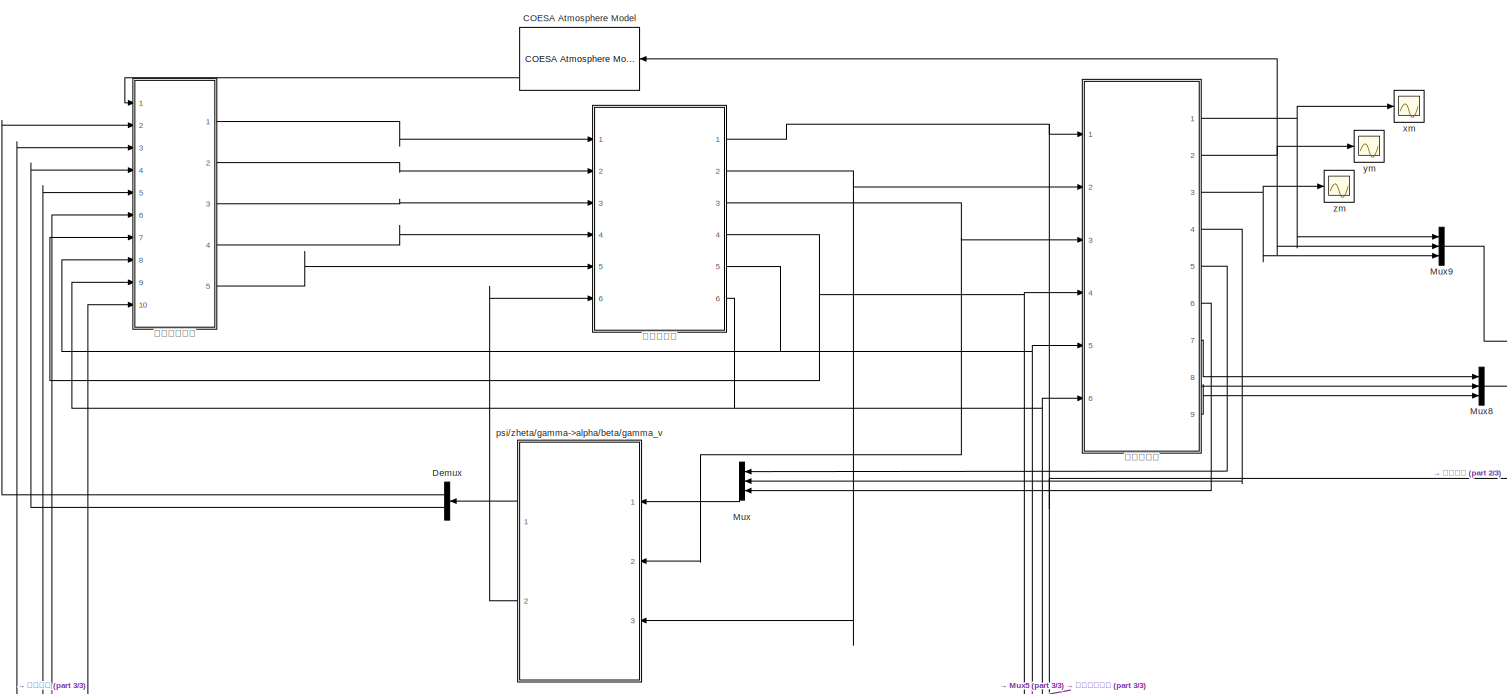
[diagram: root canvas - part 1/3, full width, middle band]
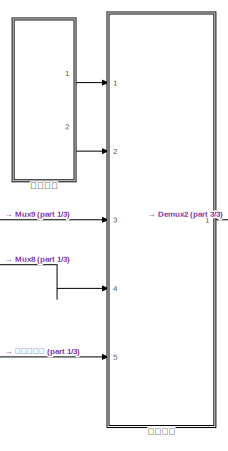
[diagram: root canvas - part 2/3, middle right region]
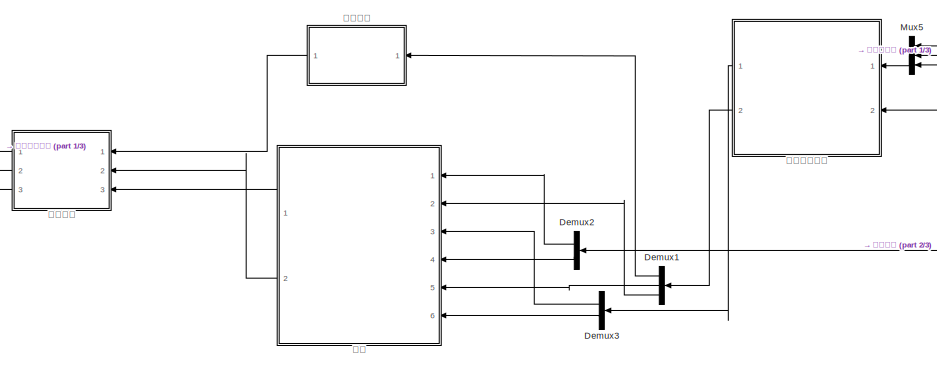
[diagram: root canvas - part 3/3, bottom left region]
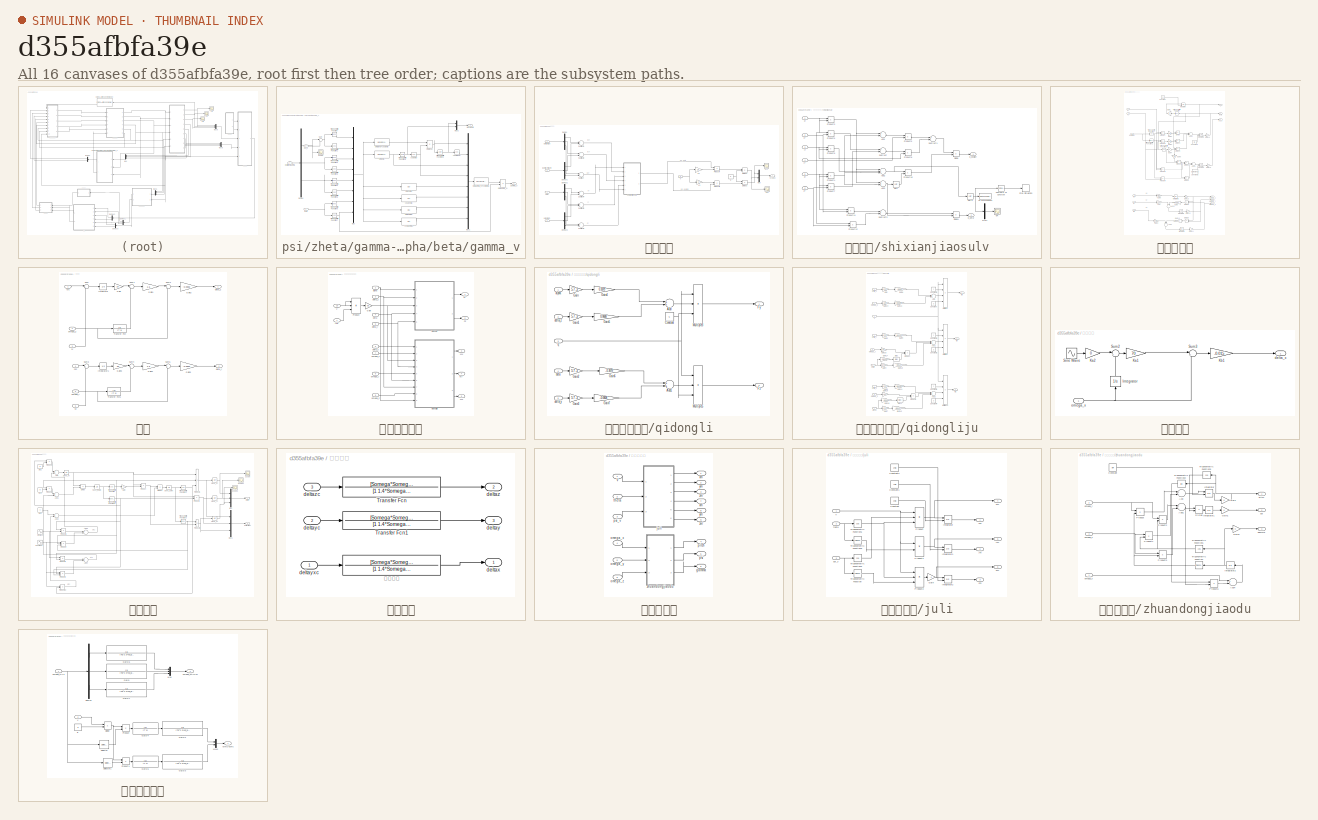
[diagram: thumbnail index - all 16 canvases of the model, root first then tree order]
MODEL slx_d355afbfa39e
KIND model
CONFIG AbsTol = auto
CONFIG EnableMultiTasking = off
CONFIG FixedStep = 0.001
CONFIG MaxStep = auto
CONFIG MinStep = auto
CONFIG RelTol = 1e-3
CONFIG SampleTimeConstraint = Unconstrained
CONFIG Solver = ode4
CONFIG SolverName = ode4
CONFIG StartTime = 0.0
CONFIG StopTime = 10
BLOCK [Reference] COESA Atmosphere Model  REF=aerolibatmos2/COESA Atmosphere Model
  Ports = [1, 4]
  SourceBlock = aerolibatmos2/COESA Atmosphere Model
  SourceType = Atmosphere Model
BLOCK [Demux] Demux
  DisplayOption = bar
  Outputs = 2
  Ports = [1, 2]
BLOCK [Demux] Demux1
  DisplayOption = bar
  Outputs = 3
  Ports = [1, 3]
BLOCK [Demux] Demux2
  DisplayOption = bar
  Outputs = 2
  Ports = [1, 2]
BLOCK [Demux] Demux3
  DisplayOption = bar
  Outputs = 2
  Ports = [1, 2]
BLOCK [Mux] Mux
  DisplayOption = bar
  Inputs = 3
  Ports = [3, 1]
BLOCK [Mux] Mux5
  DisplayOption = bar
  Inputs = 3
  Ports = [3, 1]
BLOCK [Mux] Mux8
  DisplayOption = bar
  Inputs = 3
  Ports = [3, 1]
BLOCK [Mux] Mux9
  DisplayOption = bar
  Inputs = 3
  Ports = [3, 1]
BLOCK [SubSystem] psi//zheta//gamma->alpha//beta//gamma_v
  Ports = [3, 2]
  RequestExecContextInheritance = off
  Variant = off
BLOCK [Demux] psi//zheta//gamma->alpha//beta//gamma_v/Demux
  DisplayOption = bar
  Outputs = 3
  Ports = [1, 3]
BLOCK [Mux] psi//zheta//gamma->alpha//beta//gamma_v/Mux
  DisplayOption = bar
  Inputs = 8
  Ports = [8, 1]
BLOCK [Mux] psi//zheta//gamma->alpha//beta//gamma_v/Mux1
  DisplayOption = bar
  Inputs = 8
  Ports = [8, 1]
BLOCK [Mux] psi//zheta//gamma->alpha//beta//gamma_v/Mux2
  DisplayOption = bar
  Inputs = 2
  Ports = [2, 1]
BLOCK [Scope] psi//zheta//gamma->alpha//beta//gamma_v/Scope
  NumInputPorts = 1
  Ports = [1]
  ScopeSpecificationString = C++SS(StrPVP('Location','[1, 49, 1367, 767]'),StrPVP('Open','off'),MxPVP('AxesTitles',24,'struct(''axes1'',''%<SignalLabel>'')'),MxPVP('ScopeGraphics',28,'struct(''FigureColor'',''[0.5 0.5 0.5]'',''AxesColor'',''[0 0 0]'',''AxesTickColor'',''[1 1 1]'',''LineColors'',''[1 1 0;1 0 1;0 1 1;1 0 0;0 1 0;0 0 1]'',''LineStyles'',''-|-|-|-|-|-'',''LineWidths'',''[0.5 0.5 0.5 0.5 0.5 0.5]'',''MarkerStyles'...<+237ch>
BLOCK [Sum] psi//zheta//gamma->alpha//beta//gamma_v/Sum
  IconShape = round
  InputSameDT = off
  Inputs = |+-
  OutDataTypeStr = Inherit: Inherit via internal rule
  Ports = [2, 1]
  SaturateOnIntegerOverflow = off
BLOCK [Trigonometry] psi//zheta//gamma->alpha//beta//gamma_v/Trigonometric Function
  Ports = [1, 1]
BLOCK [Trigonometry] psi//zheta//gamma->alpha//beta//gamma_v/Trigonometric Function1
  Operator = cos
  Ports = [1, 1]
BLOCK [Trigonometry] psi//zheta//gamma->alpha//beta//gamma_v/Trigonometric Function2
  Ports = [1, 1]
BLOCK [Trigonometry] psi//zheta//gamma->alpha//beta//gamma_v/Trigonometric Function3
  Operator = cos
  Ports = [1, 1]
BLOCK [Trigonometry] psi//zheta//gamma->alpha//beta//gamma_v/Trigonometric Function4
  Ports = [1, 1]
BLOCK [Trigonometry] psi//zheta//gamma->alpha//beta//gamma_v/Trigonometric Function5
  Operator = cos
  Ports = [1, 1]
BLOCK [Trigonometry] psi//zheta//gamma->alpha//beta//gamma_v/Trigonometric Function6
  Ports = [1, 1]
BLOCK [Trigonometry] psi//zheta//gamma->alpha//beta//gamma_v/Trigonometric Function7
  Operator = cos
  Ports = [1, 1]
BLOCK [Trigonometry] psi//zheta//gamma->alpha//beta//gamma_v/Trigonometric Function8
  Operator = asin
  Ports = [1, 1]
BLOCK [Trigonometry] psi//zheta//gamma->alpha//beta//gamma_v/Trigonometric Function9
  Operator = asin
  Ports = [1, 1]
BLOCK [Outport] psi//zheta//gamma->alpha//beta//gamma_v/alpha//beta
  IconDisplay = Port number
BLOCK [Trigonometry] psi//zheta//gamma->alpha//beta//gamma_v/cos(alpha)
  Operator = cos
  Ports = [1, 1]
BLOCK [Trigonometry] psi//zheta//gamma->alpha//beta//gamma_v/cos(beta)
  Operator = cos
  Ports = [1, 1]
BLOCK [Fcn] psi//zheta//gamma->alpha//beta//gamma_v/cos(gamma)
  Expr = u(6)
BLOCK [Fcn] psi//zheta//gamma->alpha//beta//gamma_v/cos(zheta)
  Expr = u(4)
BLOCK [Outport] psi//zheta//gamma->alpha//beta//gamma_v/gamma_v
  IconDisplay = Port number
  Port = 2
BLOCK [Inport] psi//zheta//gamma->alpha//beta//gamma_v/psi//pitch//gamma
  IconDisplay = Port number
BLOCK [Inport] psi//zheta//gamma->alpha//beta//gamma_v/psi_v
  IconDisplay = Port number
  Port = 2
BLOCK [Product] psi//zheta//gamma->alpha//beta//gamma_v/sin(alpha)
  InputSameDT = off
  Inputs = */
  OutDataTypeStr = Inherit: Inherit via internal rule
  Ports = [2, 1]
  RndMeth = Floor
  SaturateOnIntegerOverflow = off
BLOCK [Fcn] psi//zheta//gamma->alpha//beta//gamma_v/sin(alpha)*cos(beta)
  Expr = u(8)*(u(3)*u(6)*u(2)-u(5)*u(1))-u(7)*u(4)*u(6)
BLOCK [Fcn] psi//zheta//gamma->alpha//beta//gamma_v/sin(beta)
  Expr = u(8)*(u(6)*u(1)+ u(3)*u(5)*u(2))-u(7)*u(4)*u(5)
BLOCK [Fcn] psi//zheta//gamma->alpha//beta//gamma_v/sin(gamma)
  Expr = u(5)
BLOCK [Product] psi//zheta//gamma->alpha//beta//gamma_v/sin(gamma_v)
  InputSameDT = off
  Inputs = */
  OutDataTypeStr = Inherit: Inherit via internal rule
  Ports = [2, 1]
  RndMeth = Floor
  SaturateOnIntegerOverflow = off
BLOCK [Fcn] psi//zheta//gamma->alpha//beta//gamma_v/sin(gamma_v)*cos(theta)
  Expr = u(2)*u(3)*u(5)-u(1)*u(3)*u(8)*u(6)+u(4)*u(7)*u(6)
BLOCK [Fcn] psi//zheta//gamma->alpha//beta//gamma_v/sin(zheta)
  Expr = u(3)
BLOCK [Inport] psi//zheta//gamma->alpha//beta//gamma_v/theta
  IconDisplay = Port number
  Port = 3
BLOCK [Scope] xm
  NumInputPorts = 1
  Ports = [1]
  ScopeSpecificationString = Simulink.scopes.TimeScopeBlockCfg('CurrentConfiguration', extmgr.ConfigurationSet(extmgr.Configuration('Core','General UI',true),extmgr.Configuration('Core','Source UI',true),extmgr.Configuration('Sources','WiredSimulink',true,'DataLoggingVariableName','xm','DataLogging',true,'DataLoggingSaveFormat','StructureWithTime'),extmgr.Configuration('Visuals','Time Domain',true,'SerializedDisplays',{struct...<+1494ch>
BLOCK [Scope] ym
  NumInputPorts = 1
  Ports = [1]
  ScopeSpecificationString = Simulink.scopes.TimeScopeBlockCfg('CurrentConfiguration', extmgr.ConfigurationSet(extmgr.Configuration('Core','General UI',true),extmgr.Configuration('Core','Source UI',true),extmgr.Configuration('Sources','WiredSimulink',true,'DataLoggingVariableName','ym','DataLogging',true,'DataLoggingSaveFormat','StructureWithTime'),extmgr.Configuration('Visuals','Time Domain',true,'SerializedDisplays',{struct...<+1494ch>
BLOCK [Scope] zm
  NumInputPorts = 1
  Ports = [1]
  ScopeSpecificationString = Simulink.scopes.TimeScopeBlockCfg('CurrentConfiguration', extmgr.ConfigurationSet(extmgr.Configuration('Core','General UI',true),extmgr.Configuration('Core','Source UI',true),extmgr.Configuration('Sources','WiredSimulink',true,'DataLoggingVariableName','zm','DataLogging',true,'DataLoggingSaveFormat','StructureWithTime'),extmgr.Configuration('Visuals','Time Domain',true,'SerializedDisplays',{struct...<+1488ch>
BLOCK [SubSystem] 制导系统
  Ports = [5, 1]
  RequestExecContextInheritance = off
  Variant = off
BLOCK [Demux] 制导系统/Demux
  DisplayOption = bar
  Outputs = 3
  Ports = [1, 3]
BLOCK [Demux] 制导系统/Demux1
  DisplayOption = bar
  Outputs = 3
  Ports = [1, 3]
BLOCK [Demux] 制导系统/Demux2
  DisplayOption = bar
  Outputs = 3
  Ports = [1, 3]
BLOCK [Demux] 制导系统/Demux3
  DisplayOption = bar
  Outputs = 3
  Ports = [1, 3]
BLOCK [Product] 制导系统/Divide2
  InputSameDT = off
  Inputs = */
  OutDataTypeStr = Inherit: Inherit via internal rule
  Ports = [2, 1]
  RndMeth = Floor
  SaturateOnIntegerOverflow = off
BLOCK [Product] 制导系统/Divide3
  InputSameDT = off
  Inputs = /*
  OutDataTypeStr = Inherit: Inherit via internal rule
  Ports = [2, 1]
  RndMeth = Floor
  SaturateOnIntegerOverflow = off
BLOCK [Mux] 制导系统/Mux
  DisplayOption = bar
  Inputs = 2
  Ports = [2, 1]
BLOCK [Product] 制导系统/Product7
  InputSameDT = off
  OutDataTypeStr = Inherit: Inherit via internal rule
  Ports = [2, 1]
  RndMeth = Floor
  SaturateOnIntegerOverflow = off
BLOCK [Product] 制导系统/Product8
  InputSameDT = off
  OutDataTypeStr = Inherit: Inherit via internal rule
  Ports = [2, 1]
  RndMeth = Floor
  SaturateOnIntegerOverflow = off
BLOCK [Sum] 制导系统/Subtract
  InputSameDT = off
  Inputs = +-
  OutDataTypeStr = Inherit: Inherit via internal rule
  Ports = [2, 1]
  SaturateOnIntegerOverflow = off
BLOCK [Sum] 制导系统/Subtract1
  InputSameDT = off
  Inputs = +-
  OutDataTypeStr = Inherit: Inherit via internal rule
  Ports = [2, 1]
  SaturateOnIntegerOverflow = off
BLOCK [Sum] 制导系统/Subtract2
  InputSameDT = off
  Inputs = +-
  OutDataTypeStr = Inherit: Inherit via internal rule
  Ports = [2, 1]
  SaturateOnIntegerOverflow = off
BLOCK [Sum] 制导系统/Subtract3
  InputSameDT = off
  Inputs = +-
  OutDataTypeStr = Inherit: Inherit via internal rule
  Ports = [2, 1]
  SaturateOnIntegerOverflow = off
BLOCK [Sum] 制导系统/Subtract4
  InputSameDT = off
  Inputs = +-
  OutDataTypeStr = Inherit: Inherit via internal rule
  Ports = [2, 1]
  SaturateOnIntegerOverflow = off
BLOCK [Sum] 制导系统/Subtract5
  InputSameDT = off
  Inputs = +-
  OutDataTypeStr = Inherit: Inherit via internal rule
  Ports = [2, 1]
  SaturateOnIntegerOverflow = off
BLOCK [Inport] 制导系统/V
  IconDisplay = Port number
  Port = 5
BLOCK [Inport] 制导系统/dxm//dym//dzm
  IconDisplay = Port number
  Port = 4
BLOCK [Inport] 制导系统/dxt//dyt//dzt
  IconDisplay = Port number
  Port = 2
BLOCK [Constant] 制导系统/g
  Value = g
BLOCK [Gain] 制导系统/k1
  Gain = 10
  OutDataTypeStr = Inherit: Inherit via internal rule
  ParamDataTypeStr = Inherit: Inherit via internal rule
  SaturateOnIntegerOverflow = off
BLOCK [Gain] 制导系统/k2
  Gain = 1.6
  OutDataTypeStr = Inherit: Inherit via internal rule
  ParamDataTypeStr = Inherit: Inherit via internal rule
  SaturateOnIntegerOverflow = off
BLOCK [Scope] 制导系统/nyc
  NumInputPorts = 1
  Ports = [1]
  ScopeSpecificationString = Simulink.scopes.TimeScopeBlockCfg('CurrentConfiguration', extmgr.ConfigurationSet(extmgr.Configuration('Core','General UI',true),extmgr.Configuration('Core','Source UI',true),extmgr.Configuration('Sources','WiredSimulink',true,'DataLoggingVariableName','ScopeData1'),extmgr.Configuration('Visuals','Time Domain',true,'SerializedDisplays',{struct('MinYLimReal','-502461.34606','MaxYLimReal','153236.74...<+1431ch>
BLOCK [Outport] 制导系统/nyc//nzc
  IconDisplay = Port number
BLOCK [Scope] 制导系统/nzc
  NumInputPorts = 1
  Ports = [1]
  ScopeSpecificationString = Simulink.scopes.TimeScopeBlockCfg('CurrentConfiguration', extmgr.ConfigurationSet(extmgr.Configuration('Core','General UI',true),extmgr.Configuration('Core','Source UI',true),extmgr.Configuration('Sources','WiredSimulink',true,'DataLoggingVariableName','ScopeData2'),extmgr.Configuration('Visuals','Time Domain',true,'SerializedDisplays',{struct('MinYLimReal','-0.41919','MaxYLimReal','-0.41835','YLa...<+1414ch>
BLOCK [SubSystem] 制导系统/shixianjiaosulv
  Ports = [6, 2]
  RequestExecContextInheritance = off
  Variant = off
BLOCK [Sum] 制导系统/shixianjiaosulv/Add1
  InputSameDT = off
  OutDataTypeStr = Inherit: Inherit via internal rule
  Ports = [2, 1]
  SaturateOnIntegerOverflow = off
BLOCK [Sum] 制导系统/shixianjiaosulv/Add2
  InputSameDT = off
  Inputs = +++
  OutDataTypeStr = Inherit: Inherit via internal rule
  Ports = [3, 1]
  SaturateOnIntegerOverflow = off
BLOCK [Sum] 制导系统/shixianjiaosulv/Add3
  InputSameDT = off
  OutDataTypeStr = Inherit: Inherit via internal rule
  Ports = [2, 1]
  SaturateOnIntegerOverflow = off
BLOCK [Reference] 制导系统/shixianjiaosulv/Compare To Constant  REF=simulink/Logic and Bit
Operations/Compare
To Constant
  Ports = [1, 1]
  SourceBlock = simulink/Logic and Bit\nOperations/Compare\nTo Constant
  SourceType = Compare To Constant
BLOCK [Product] 制导系统/shixianjiaosulv/Divide
  InputSameDT = off
  Inputs = */
  OutDataTypeStr = Inherit: Inherit via internal rule
  Ports = [2, 1]
  RndMeth = Floor
  SaturateOnIntegerOverflow = off
BLOCK [Product] 制导系统/shixianjiaosulv/Divide1
  InputSameDT = off
  Inputs = */
  OutDataTypeStr = Inherit: Inherit via internal rule
  Ports = [2, 1]
  RndMeth = Floor
  SaturateOnIntegerOverflow = off
BLOCK [Mux] 制导系统/shixianjiaosulv/Mux1
  DisplayOption = bar
  Inputs = 1
  Ports = [1, 1]
BLOCK [Product] 制导系统/shixianjiaosulv/Product10
  InputSameDT = off
  OutDataTypeStr = Inherit: Inherit via internal rule
  Ports = [2, 1]
  RndMeth = Floor
  SaturateOnIntegerOverflow = off
BLOCK [Product] 制导系统/shixianjiaosulv/Product11
  InputSameDT = off
  OutDataTypeStr = Inherit: Inherit via internal rule
  Ports = [2, 1]
  RndMeth = Floor
  SaturateOnIntegerOverflow = off
BLOCK [Product] 制导系统/shixianjiaosulv/Product12
  InputSameDT = off
  OutDataTypeStr = Inherit: Inherit via internal rule
  Ports = [2, 1]
  RndMeth = Floor
  SaturateOnIntegerOverflow = off
BLOCK [Product] 制导系统/shixianjiaosulv/Product3
  InputSameDT = off
  OutDataTypeStr = Inherit: Inherit via internal rule
  Ports = [2, 1]
  RndMeth = Floor
  SaturateOnIntegerOverflow = off
BLOCK [Product] 制导系统/shixianjiaosulv/Product4
  InputSameDT = off
  OutDataTypeStr = Inherit: Inherit via internal rule
  Ports = [2, 1]
  RndMeth = Floor
  SaturateOnIntegerOverflow = off
BLOCK [Product] 制导系统/shixianjiaosulv/Product5
  InputSameDT = off
  OutDataTypeStr = Inherit: Inherit via internal rule
  Ports = [2, 1]
  RndMeth = Floor
  SaturateOnIntegerOverflow = off
BLOCK [Product] 制导系统/shixianjiaosulv/Product6
  InputSameDT = off
  OutDataTypeStr = Inherit: Inherit via internal rule
  Ports = [2, 1]
  RndMeth = Floor
  SaturateOnIntegerOverflow = off
BLOCK [Product] 制导系统/shixianjiaosulv/Product7
  InputSameDT = off
  OutDataTypeStr = Inherit: Inherit via internal rule
  Ports = [2, 1]
  RndMeth = Floor
  SaturateOnIntegerOverflow = off
BLOCK [Product] 制导系统/shixianjiaosulv/Product8
  InputSameDT = off
  OutDataTypeStr = Inherit: Inherit via internal rule
  Ports = [2, 1]
  RndMeth = Floor
  SaturateOnIntegerOverflow = off
BLOCK [Product] 制导系统/shixianjiaosulv/Product9
  InputSameDT = off
  OutDataTypeStr = Inherit: Inherit via internal rule
  Ports = [2, 1]
  RndMeth = Floor
  SaturateOnIntegerOverflow = off
BLOCK [Sqrt] 制导系统/shixianjiaosulv/Sqrt
BLOCK [Sqrt] 制导系统/shixianjiaosulv/Sqrt1
BLOCK [Stop] 制导系统/shixianjiaosulv/Stop Simulation
BLOCK [Sum] 制导系统/shixianjiaosulv/Subtract
  InputSameDT = off
  Inputs = +-
  OutDataTypeStr = Inherit: Inherit via internal rule
  Ports = [2, 1]
  SaturateOnIntegerOverflow = off
BLOCK [Sum] 制导系统/shixianjiaosulv/Subtract1
  InputSameDT = off
  Inputs = +-
  OutDataTypeStr = Inherit: Inherit via internal rule
  Ports = [2, 1]
  SaturateOnIntegerOverflow = off
BLOCK [Sum] 制导系统/shixianjiaosulv/Subtract2
  InputSameDT = off
  Inputs = +-
  OutDataTypeStr = Inherit: Inherit via internal rule
  Ports = [2, 1]
  SaturateOnIntegerOverflow = off
BLOCK [ToWorkspace] 制导系统/shixianjiaosulv/To Workspace1
  MaxDataPoints = inf
  Ports = [1]
  SampleTime = -1
  SaveFormat = Timeseries
  VariableName = dR
BLOCK [Scope] 制导系统/shixianjiaosulv/dR
  NumInputPorts = 1
  Ports = [1]
  ScopeSpecificationString = Simulink.scopes.TimeScopeBlockCfg('CurrentConfiguration', extmgr.ConfigurationSet(extmgr.Configuration('Core','General UI',true),extmgr.Configuration('Core','Source UI',true),extmgr.Configuration('Sources','WiredSimulink',true,'DataLoggingVariableName','ScopeData1'),extmgr.Configuration('Visuals','Time Domain',true,'SerializedDisplays',{struct('MinYLimReal','1615.55941','MaxYLimReal','2232.43555',...<+1466ch>
BLOCK [Outport] 制导系统/shixianjiaosulv/q_beta'
  IconDisplay = Port number
  Port = 2
BLOCK [Outport] 制导系统/shixianjiaosulv/q_epsilon'
  IconDisplay = Port number
BLOCK [Inport] 制导系统/shixianjiaosulv/xr
  IconDisplay = Port number
BLOCK [Inport] 制导系统/shixianjiaosulv/xr'
  IconDisplay = Port number
  Port = 2
BLOCK [Inport] 制导系统/shixianjiaosulv/yr
  IconDisplay = Port number
  Port = 3
BLOCK [Inport] 制导系统/shixianjiaosulv/yr'
  IconDisplay = Port number
  Port = 4
BLOCK [Inport] 制导系统/shixianjiaosulv/zr
  IconDisplay = Port number
  Port = 5
BLOCK [Inport] 制导系统/shixianjiaosulv/zr'
  IconDisplay = Port number
  Port = 6
BLOCK [Inport] 制导系统/xm//ym//zm
  IconDisplay = Port number
  Port = 3
BLOCK [Inport] 制导系统/xt//yt//zt
  IconDisplay = Port number
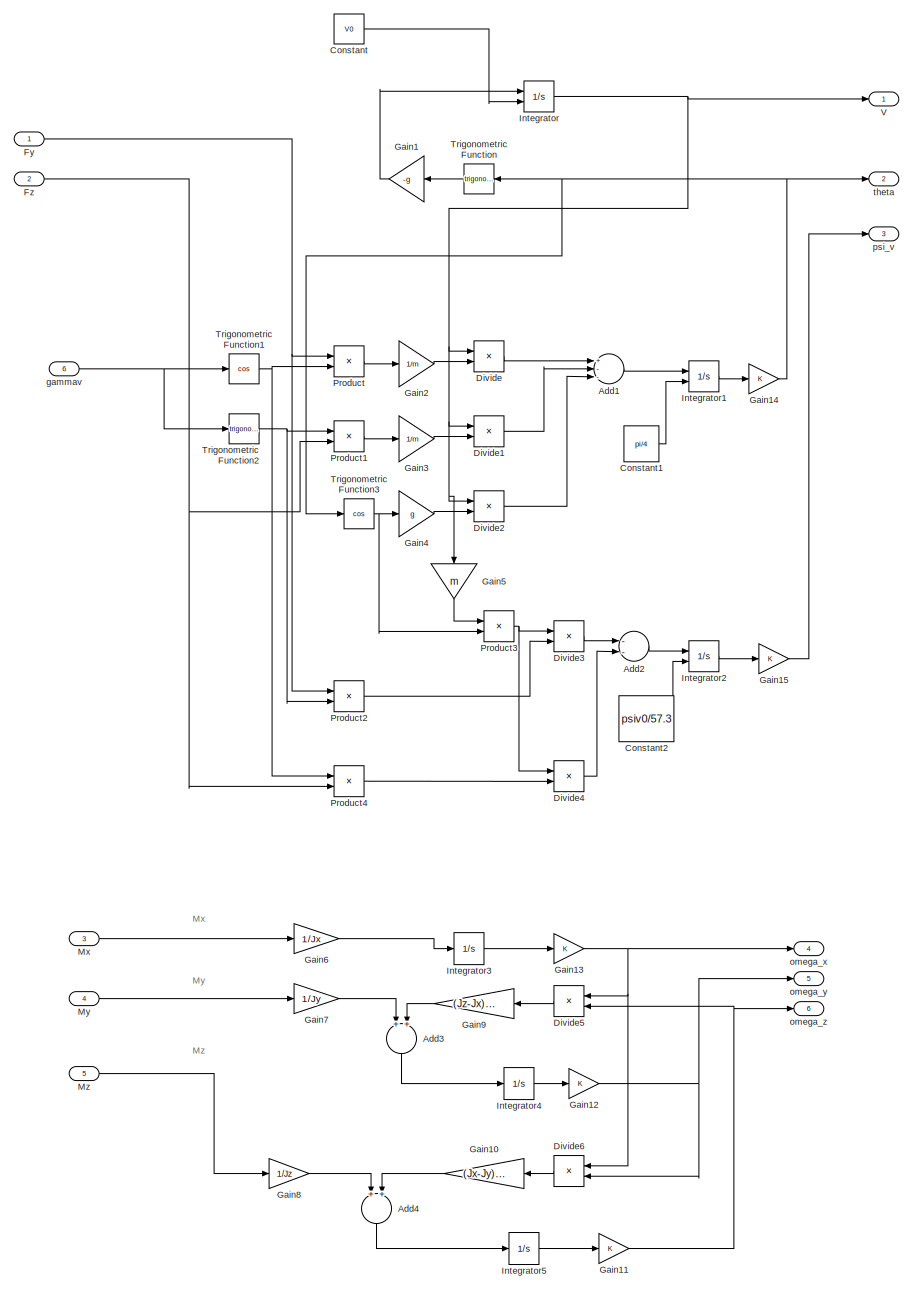
[diagram: 动力学模块 - part 1/1, most of the canvas]
BLOCK [SubSystem] 动力学模块
  Ports = [6, 6]
  RequestExecContextInheritance = off
  Variant = off
BLOCK [Sum] 动力学模块/Add1
  InputSameDT = off
  Inputs = +--
  OutDataTypeStr = Inherit: Inherit via internal rule
  Ports = [3, 1]
  SaturateOnIntegerOverflow = off
BLOCK [Sum] 动力学模块/Add2
  InputSameDT = off
  Inputs = --
  OutDataTypeStr = Inherit: Inherit via internal rule
  Ports = [2, 1]
  SaturateOnIntegerOverflow = off
BLOCK [Sum] 动力学模块/Add3
  InputSameDT = off
  OutDataTypeStr = Inherit: Inherit via internal rule
  Ports = [2, 1]
  SaturateOnIntegerOverflow = off
BLOCK [Sum] 动力学模块/Add4
  InputSameDT = off
  OutDataTypeStr = Inherit: Inherit via internal rule
  Ports = [2, 1]
  SaturateOnIntegerOverflow = off
BLOCK [Constant] 动力学模块/Constant
  Value = V0
BLOCK [Constant] 动力学模块/Constant1
  Value = pi/4
BLOCK [Constant] 动力学模块/Constant2
  Value = psiv0/57.3
BLOCK [Product] 动力学模块/Divide
  InputSameDT = off
  Inputs = /*
  OutDataTypeStr = Inherit: Inherit via internal rule
  Ports = [2, 1]
  RndMeth = Floor
  SaturateOnIntegerOverflow = off
BLOCK [Product] 动力学模块/Divide1
  InputSameDT = off
  Inputs = /*
  OutDataTypeStr = Inherit: Inherit via internal rule
  Ports = [2, 1]
  RndMeth = Floor
  SaturateOnIntegerOverflow = off
BLOCK [Product] 动力学模块/Divide2
  InputSameDT = off
  Inputs = /*
  OutDataTypeStr = Inherit: Inherit via internal rule
  Ports = [2, 1]
  RndMeth = Floor
  SaturateOnIntegerOverflow = off
BLOCK [Product] 动力学模块/Divide3
  InputSameDT = off
  Inputs = /*
  OutDataTypeStr = Inherit: Inherit via internal rule
  Ports = [2, 1]
  RndMeth = Floor
  SaturateOnIntegerOverflow = off
BLOCK [Product] 动力学模块/Divide4
  InputSameDT = off
  Inputs = /*
  OutDataTypeStr = Inherit: Inherit via internal rule
  Ports = [2, 1]
  RndMeth = Floor
  SaturateOnIntegerOverflow = off
BLOCK [Product] 动力学模块/Divide5
  InputSameDT = off
  Inputs = **
  OutDataTypeStr = Inherit: Inherit via internal rule
  Ports = [2, 1]
  RndMeth = Floor
  SaturateOnIntegerOverflow = off
BLOCK [Product] 动力学模块/Divide6
  InputSameDT = off
  Inputs = **
  OutDataTypeStr = Inherit: Inherit via internal rule
  Ports = [2, 1]
  RndMeth = Floor
  SaturateOnIntegerOverflow = off
BLOCK [Inport] 动力学模块/Fy
  IconDisplay = Port number
BLOCK [Inport] 动力学模块/Fz
  IconDisplay = Port number
  Port = 2
BLOCK [Gain] 动力学模块/Gain1
  Gain = -g
  OutDataTypeStr = Inherit: Inherit via internal rule
  ParamDataTypeStr = Inherit: Inherit via internal rule
  SaturateOnIntegerOverflow = off
BLOCK [Gain] 动力学模块/Gain10
  Gain = (Jx-Jy)/Jz
  OutDataTypeStr = Inherit: Inherit via internal rule
  ParamDataTypeStr = Inherit: Inherit via internal rule
  SaturateOnIntegerOverflow = off
BLOCK [Gain] 动力学模块/Gain11
  OutDataTypeStr = Inherit: Inherit via internal rule
  ParamDataTypeStr = Inherit: Inherit via internal rule
  SaturateOnIntegerOverflow = off
BLOCK [Gain] 动力学模块/Gain12
  OutDataTypeStr = Inherit: Inherit via internal rule
  ParamDataTypeStr = Inherit: Inherit via internal rule
  SaturateOnIntegerOverflow = off
BLOCK [Gain] 动力学模块/Gain13
  OutDataTypeStr = Inherit: Inherit via internal rule
  ParamDataTypeStr = Inherit: Inherit via internal rule
  SaturateOnIntegerOverflow = off
BLOCK [Gain] 动力学模块/Gain14
  OutDataTypeStr = Inherit: Inherit via internal rule
  ParamDataTypeStr = Inherit: Inherit via internal rule
  SaturateOnIntegerOverflow = off
BLOCK [Gain] 动力学模块/Gain15
  OutDataTypeStr = Inherit: Inherit via internal rule
  ParamDataTypeStr = Inherit: Inherit via internal rule
  SaturateOnIntegerOverflow = off
BLOCK [Gain] 动力学模块/Gain2
  Gain = 1/m
  OutDataTypeStr = Inherit: Inherit via internal rule
  ParamDataTypeStr = Inherit: Inherit via internal rule
  SaturateOnIntegerOverflow = off
BLOCK [Gain] 动力学模块/Gain3
  Gain = 1/m
  OutDataTypeStr = Inherit: Inherit via internal rule
  ParamDataTypeStr = Inherit: Inherit via internal rule
  SaturateOnIntegerOverflow = off
BLOCK [Gain] 动力学模块/Gain4
  Gain = g
  OutDataTypeStr = Inherit: Inherit via internal rule
  ParamDataTypeStr = Inherit: Inherit via internal rule
  SaturateOnIntegerOverflow = off
BLOCK [Gain] 动力学模块/Gain5
  Gain = m
  OutDataTypeStr = Inherit: Inherit via internal rule
  ParamDataTypeStr = Inherit: Inherit via internal rule
  SaturateOnIntegerOverflow = off
BLOCK [Gain] 动力学模块/Gain6
  Gain = 1/Jx
  OutDataTypeStr = Inherit: Inherit via internal rule
  ParamDataTypeStr = Inherit: Inherit via internal rule
  SaturateOnIntegerOverflow = off
BLOCK [Gain] 动力学模块/Gain7
  Gain = 1/Jy
  OutDataTypeStr = Inherit: Inherit via internal rule
  ParamDataTypeStr = Inherit: Inherit via internal rule
  SaturateOnIntegerOverflow = off
BLOCK [Gain] 动力学模块/Gain8
  Gain = 1/Jz
  OutDataTypeStr = Inherit: Inherit via internal rule
  ParamDataTypeStr = Inherit: Inherit via internal rule
  SaturateOnIntegerOverflow = off
BLOCK [Gain] 动力学模块/Gain9
  Gain = (Jz-Jx)/Jy
  OutDataTypeStr = Inherit: Inherit via internal rule
  ParamDataTypeStr = Inherit: Inherit via internal rule
  SaturateOnIntegerOverflow = off
BLOCK [Integrator] 动力学模块/Integrator
  InitialConditionSource = external
  Ports = [2, 1]
BLOCK [Integrator] 动力学模块/Integrator1
  InitialConditionSource = external
  Ports = [2, 1]
BLOCK [Integrator] 动力学模块/Integrator2
  InitialConditionSource = external
  Ports = [2, 1]
BLOCK [Integrator] 动力学模块/Integrator3
  Ports = [1, 1]
BLOCK [Integrator] 动力学模块/Integrator4
  Ports = [1, 1]
BLOCK [Integrator] 动力学模块/Integrator5
  Ports = [1, 1]
BLOCK [Inport] 动力学模块/Mx
  IconDisplay = Port number
  Port = 3
BLOCK [Inport] 动力学模块/My
  IconDisplay = Port number
  Port = 4
BLOCK [Inport] 动力学模块/Mz
  IconDisplay = Port number
  Port = 5
BLOCK [Product] 动力学模块/Product
  InputSameDT = off
  OutDataTypeStr = Inherit: Inherit via internal rule
  Ports = [2, 1]
  RndMeth = Floor
  SaturateOnIntegerOverflow = off
BLOCK [Product] 动力学模块/Product1
  InputSameDT = off
  OutDataTypeStr = Inherit: Inherit via internal rule
  Ports = [2, 1]
  RndMeth = Floor
  SaturateOnIntegerOverflow = off
BLOCK [Product] 动力学模块/Product2
  InputSameDT = off
  OutDataTypeStr = Inherit: Inherit via internal rule
  Ports = [2, 1]
  RndMeth = Floor
  SaturateOnIntegerOverflow = off
BLOCK [Product] 动力学模块/Product3
  InputSameDT = off
  OutDataTypeStr = Inherit: Inherit via internal rule
  Ports = [2, 1]
  RndMeth = Floor
  SaturateOnIntegerOverflow = off
BLOCK [Product] 动力学模块/Product4
  InputSameDT = off
  OutDataTypeStr = Inherit: Inherit via internal rule
  Ports = [2, 1]
  RndMeth = Floor
  SaturateOnIntegerOverflow = off
BLOCK [Trigonometry] 动力学模块/Trigonometric Function
  Ports = [1, 1]
BLOCK [Trigonometry] 动力学模块/Trigonometric Function1
  Operator = cos
  Ports = [1, 1]
BLOCK [Trigonometry] 动力学模块/Trigonometric Function2
  Ports = [1, 1]
BLOCK [Trigonometry] 动力学模块/Trigonometric Function3
  Operator = cos
  Ports = [1, 1]
BLOCK [Outport] 动力学模块/V
  IconDisplay = Port number
BLOCK [Inport] 动力学模块/gammav 
  IconDisplay = Port number
  Port = 6
BLOCK [Outport] 动力学模块/omega_x
  IconDisplay = Port number
  Port = 4
BLOCK [Outport] 动力学模块/omega_y
  IconDisplay = Port number
  Port = 5
BLOCK [Outport] 动力学模块/omega_z
  IconDisplay = Port number
  Port = 6
BLOCK [Outport] 动力学模块/psi_v
  IconDisplay = Port number
  Port = 3
BLOCK [Outport] 动力学模块/theta
  IconDisplay = Port number
  Port = 2
BLOCK [SubSystem] 控制
  Ports = [6, 2]
  RequestExecContextInheritance = off
  Variant = off
BLOCK [Gain] 控制/Gain
  Gain = 20
  OutDataTypeStr = Inherit: Inherit via internal rule
  ParamDataTypeStr = Inherit: Inherit via internal rule
  SaturateOnIntegerOverflow = off
BLOCK [Gain] 控制/Gain1
  Gain = 1.6
  OutDataTypeStr = Inherit: Inherit via internal rule
  ParamDataTypeStr = Inherit: Inherit via internal rule
  SaturateOnIntegerOverflow = off
BLOCK [Gain] 控制/Gain2
  Gain = -0.0002
  OutDataTypeStr = Inherit: Inherit via internal rule
  ParamDataTypeStr = Inherit: Inherit via internal rule
  SaturateOnIntegerOverflow = off
BLOCK [Gain] 控制/Gain3
  Gain = 20
  OutDataTypeStr = Inherit: Inherit via internal rule
  ParamDataTypeStr = Inherit: Inherit via internal rule
  SaturateOnIntegerOverflow = off
BLOCK [Gain] 控制/Gain4
  Gain = 1.6
  OutDataTypeStr = Inherit: Inherit via internal rule
  ParamDataTypeStr = Inherit: Inherit via internal rule
  SaturateOnIntegerOverflow = off
BLOCK [Gain] 控制/Gain5
  Gain = -0.0002
  OutDataTypeStr = Inherit: Inherit via internal rule
  ParamDataTypeStr = Inherit: Inherit via internal rule
  SaturateOnIntegerOverflow = off
BLOCK [Integrator] 控制/Integrator
  Ports = [1, 1]
BLOCK [Integrator] 控制/Integrator1
  Ports = [1, 1]
BLOCK [Sum] 控制/Sum
  IconShape = round
  InputSameDT = off
  Inputs = |+-
  OutDataTypeStr = Inherit: Inherit via internal rule
  Ports = [2, 1]
  SaturateOnIntegerOverflow = off
BLOCK [Sum] 控制/Sum1
  IconShape = round
  InputSameDT = off
  Inputs = |+-
  OutDataTypeStr = Inherit: Inherit via internal rule
  Ports = [2, 1]
  SaturateOnIntegerOverflow = off
BLOCK [Sum] 控制/Sum2
  IconShape = round
  InputSameDT = off
  Inputs = |+-
  OutDataTypeStr = Inherit: Inherit via internal rule
  Ports = [2, 1]
  SaturateOnIntegerOverflow = off
BLOCK [Sum] 控制/Sum3
  IconShape = round
  InputSameDT = off
  Inputs = |+-
  OutDataTypeStr = Inherit: Inherit via internal rule
  Ports = [2, 1]
  SaturateOnIntegerOverflow = off
BLOCK [Sum] 控制/Sum4
  IconShape = round
  InputSameDT = off
  Inputs = |+-
  OutDataTypeStr = Inherit: Inherit via internal rule
  Ports = [2, 1]
  SaturateOnIntegerOverflow = off
BLOCK [Sum] 控制/Sum5
  IconShape = round
  InputSameDT = off
  Inputs = |+-
  OutDataTypeStr = Inherit: Inherit via internal rule
  Ports = [2, 1]
  SaturateOnIntegerOverflow = off
BLOCK [TransferFcn] 控制/Transfer Fcn
  Denominator = [T 1]
  Numerator = [T]
BLOCK [TransferFcn] 控制/Transfer Fcn1
  Denominator = [T 1]
  Numerator = [T]
BLOCK [Outport] 控制/delta_y
  IconDisplay = Port number
  Port = 2
BLOCK [Outport] 控制/delta_z
  IconDisplay = Port number
BLOCK [Inport] 控制/ny
  IconDisplay = Port number
  Port = 3
BLOCK [Inport] 控制/nyc
  IconDisplay = Port number
BLOCK [Inport] 控制/nz
  IconDisplay = Port number
  Port = 6
BLOCK [Inport] 控制/nzc
  IconDisplay = Port number
  Port = 4
BLOCK [Inport] 控制/omega_y
  IconDisplay = Port number
  Port = 5
BLOCK [Inport] 控制/omega_z
  IconDisplay = Port number
  Port = 2
BLOCK [SubSystem] 气动计算模块
  Ports = [10, 5]
  RequestExecContextInheritance = off
  Variant = off
BLOCK [Outport] 气动计算模块/Fy
  IconDisplay = Port number
BLOCK [Outport] 气动计算模块/Fz
  IconDisplay = Port number
  Port = 2
BLOCK [Gain] 气动计算模块/Gain
  Gain = 0.5
  OutDataTypeStr = Inherit: Inherit via internal rule
  ParamDataTypeStr = Inherit: Inherit via internal rule
  SaturateOnIntegerOverflow = off
BLOCK [Outport] 气动计算模块/Mx
  IconDisplay = Port number
  Port = 3
BLOCK [Outport] 气动计算模块/My
  IconDisplay = Port number
  Port = 4
BLOCK [Outport] 气动计算模块/Mz
  IconDisplay = Port number
  Port = 5
BLOCK [Product] 气动计算模块/Product
  InputSameDT = off
  Inputs = 3
  OutDataTypeStr = Inherit: Inherit via internal rule
  Ports = [3, 1]
  RndMeth = Floor
  SaturateOnIntegerOverflow = off
BLOCK [Inport] 气动计算模块/V
  IconDisplay = Port number
  Port = 10
BLOCK [Inport] 气动计算模块/alpha
  IconDisplay = Port number
  Port = 2
BLOCK [Inport] 气动计算模块/beta
  IconDisplay = Port number
  Port = 4
BLOCK [Inport] 气动计算模块/delta_x
  IconDisplay = Port number
  Port = 6
BLOCK [Inport] 气动计算模块/delta_y
  IconDisplay = Port number
  Port = 5
BLOCK [Inport] 气动计算模块/delta_z
  IconDisplay = Port number
  Port = 3
BLOCK [Inport] 气动计算模块/omega_x
  IconDisplay = Port number
  Port = 7
BLOCK [Inport] 气动计算模块/omega_y
  IconDisplay = Port number
  Port = 8
BLOCK [Inport] 气动计算模块/omega_z
  IconDisplay = Port number
  Port = 9
BLOCK [SubSystem] 气动计算模块/qidongli
  Ports = [5, 2]
  RequestExecContextInheritance = off
  Variant = off
BLOCK [Sum] 气动计算模块/qidongli/Add
  InputSameDT = off
  OutDataTypeStr = Inherit: Inherit via internal rule
  Ports = [2, 1]
  SaturateOnIntegerOverflow = off
BLOCK [Sum] 气动计算模块/qidongli/Add1
  InputSameDT = off
  OutDataTypeStr = Inherit: Inherit via internal rule
  Ports = [2, 1]
  SaturateOnIntegerOverflow = off
BLOCK [Constant] 气动计算模块/qidongli/Constant
  Value = S
BLOCK [Outport] 气动计算模块/qidongli/Fy
  IconDisplay = Port number
BLOCK [Outport] 气动计算模块/qidongli/Fz
  IconDisplay = Port number
  Port = 2
BLOCK [Gain] 气动计算模块/qidongli/Gain
  Gain = 57.3
  OutDataTypeStr = Inherit: Inherit via internal rule
  ParamDataTypeStr = Inherit: Inherit via internal rule
  SaturateOnIntegerOverflow = off
BLOCK [Gain] 气动计算模块/qidongli/Gain1
  Gain = 57.3
  OutDataTypeStr = Inherit: Inherit via internal rule
  ParamDataTypeStr = Inherit: Inherit via internal rule
  SaturateOnIntegerOverflow = off
BLOCK [Gain] 气动计算模块/qidongli/Gain2
  Gain = 57.3
  OutDataTypeStr = Inherit: Inherit via internal rule
  ParamDataTypeStr = Inherit: Inherit via internal rule
  SaturateOnIntegerOverflow = off
BLOCK [Gain] 气动计算模块/qidongli/Gain3
  Gain = 57.3
  OutDataTypeStr = Inherit: Inherit via internal rule
  ParamDataTypeStr = Inherit: Inherit via internal rule
  SaturateOnIntegerOverflow = off
BLOCK [Gain] 气动计算模块/qidongli/Gain4
  Gain = 0.3079
  OutDataTypeStr = Inherit: Inherit via internal rule
  ParamDataTypeStr = Inherit: Inherit via internal rule
  SaturateOnIntegerOverflow = off
BLOCK [Gain] 气动计算模块/qidongli/Gain5
  Gain = 0.0608
  OutDataTypeStr = Inherit: Inherit via internal rule
  ParamDataTypeStr = Inherit: Inherit via internal rule
  SaturateOnIntegerOverflow = off
BLOCK [Gain] 气动计算模块/qidongli/Gain6
  Gain = -0.3079
  OutDataTypeStr = Inherit: Inherit via internal rule
  ParamDataTypeStr = Inherit: Inherit via internal rule
  SaturateOnIntegerOverflow = off
BLOCK [Gain] 气动计算模块/qidongli/Gain7
  Gain = -0.0608
  OutDataTypeStr = Inherit: Inherit via internal rule
  ParamDataTypeStr = Inherit: Inherit via internal rule
  SaturateOnIntegerOverflow = off
BLOCK [Product] 气动计算模块/qidongli/Multiple3
  InputSameDT = off
  Inputs = ***
  OutDataTypeStr = Inherit: Inherit via internal rule
  Ports = [3, 1]
  RndMeth = Floor
  SaturateOnIntegerOverflow = off
BLOCK [Product] 气动计算模块/qidongli/Multiple5
  InputSameDT = off
  Inputs = ***
  OutDataTypeStr = Inherit: Inherit via internal rule
  Ports = [3, 1]
  RndMeth = Floor
  SaturateOnIntegerOverflow = off
BLOCK [Inport] 气动计算模块/qidongli/alpha
  IconDisplay = Port number
BLOCK [Inport] 气动计算模块/qidongli/beta
  IconDisplay = Port number
  Port = 4
BLOCK [Inport] 气动计算模块/qidongli/delta_y
  IconDisplay = Port number
  Port = 5
BLOCK [Inport] 气动计算模块/qidongli/delta_z
  IconDisplay = Port number
  Port = 2
BLOCK [Inport] 气动计算模块/qidongli/q
  IconDisplay = Port number
  Port = 3
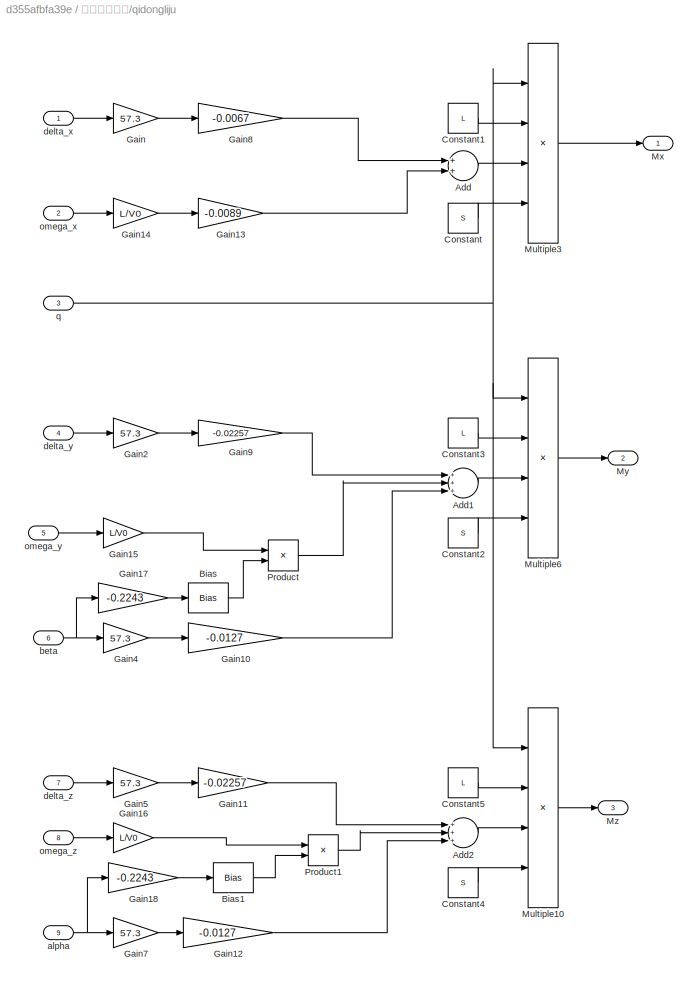
BLOCK [SubSystem] 气动计算模块/qidongliju
  Ports = [9, 3]
  RequestExecContextInheritance = off
  Variant = off
BLOCK [Sum] 气动计算模块/qidongliju/Add
  InputSameDT = off
  OutDataTypeStr = Inherit: Inherit via internal rule
  Ports = [2, 1]
  SaturateOnIntegerOverflow = off
BLOCK [Sum] 气动计算模块/qidongliju/Add1
  InputSameDT = off
  Inputs = +++
  OutDataTypeStr = Inherit: Inherit via internal rule
  Ports = [3, 1]
  SaturateOnIntegerOverflow = off
BLOCK [Sum] 气动计算模块/qidongliju/Add2
  InputSameDT = off
  Inputs = +++
  OutDataTypeStr = Inherit: Inherit via internal rule
  Ports = [3, 1]
  SaturateOnIntegerOverflow = off
BLOCK [Bias] 气动计算模块/qidongliju/Bias
  Bias = -0.0274
  SaturateOnIntegerOverflow = off
BLOCK [Bias] 气动计算模块/qidongliju/Bias1
  Bias = -0.0274
  SaturateOnIntegerOverflow = off
BLOCK [Constant] 气动计算模块/qidongliju/Constant
  Value = S
BLOCK [Constant] 气动计算模块/qidongliju/Constant1
  Value = L
BLOCK [Constant] 气动计算模块/qidongliju/Constant2
  Value = S
BLOCK [Constant] 气动计算模块/qidongliju/Constant3
  Value = L
BLOCK [Constant] 气动计算模块/qidongliju/Constant4
  Value = S
BLOCK [Constant] 气动计算模块/qidongliju/Constant5
  Value = L
BLOCK [Gain] 气动计算模块/qidongliju/Gain
  Gain = 57.3
  OutDataTypeStr = Inherit: Inherit via internal rule
  ParamDataTypeStr = Inherit: Inherit via internal rule
  SaturateOnIntegerOverflow = off
BLOCK [Gain] 气动计算模块/qidongliju/Gain10
  Gain = -0.0127
  OutDataTypeStr = Inherit: Inherit via internal rule
  ParamDataTypeStr = Inherit: Inherit via internal rule
  SaturateOnIntegerOverflow = off
BLOCK [Gain] 气动计算模块/qidongliju/Gain11
  Gain = -0.02257
  OutDataTypeStr = Inherit: Inherit via internal rule
  ParamDataTypeStr = Inherit: Inherit via internal rule
  SaturateOnIntegerOverflow = off
BLOCK [Gain] 气动计算模块/qidongliju/Gain12
  Gain = -0.0127
  OutDataTypeStr = Inherit: Inherit via internal rule
  ParamDataTypeStr = Inherit: Inherit via internal rule
  SaturateOnIntegerOverflow = off
BLOCK [Gain] 气动计算模块/qidongliju/Gain13
  Gain = -0.0089
  OutDataTypeStr = Inherit: Inherit via internal rule
  ParamDataTypeStr = Inherit: Inherit via internal rule
  SaturateOnIntegerOverflow = off
BLOCK [Gain] 气动计算模块/qidongliju/Gain14
  Gain = L/V0
  OutDataTypeStr = Inherit: Inherit via internal rule
  ParamDataTypeStr = Inherit: Inherit via internal rule
  SaturateOnIntegerOverflow = off
BLOCK [Gain] 气动计算模块/qidongliju/Gain15
  Gain = L/V0
  OutDataTypeStr = Inherit: Inherit via internal rule
  ParamDataTypeStr = Inherit: Inherit via internal rule
  SaturateOnIntegerOverflow = off
BLOCK [Gain] 气动计算模块/qidongliju/Gain16
  Gain = L/V0
  OutDataTypeStr = Inherit: Inherit via internal rule
  ParamDataTypeStr = Inherit: Inherit via internal rule
  SaturateOnIntegerOverflow = off
BLOCK [Gain] 气动计算模块/qidongliju/Gain17
  Gain = -0.2243
  OutDataTypeStr = Inherit: Inherit via internal rule
  ParamDataTypeStr = Inherit: Inherit via internal rule
  SaturateOnIntegerOverflow = off
BLOCK [Gain] 气动计算模块/qidongliju/Gain18
  Gain = -0.2243
  OutDataTypeStr = Inherit: Inherit via internal rule
  ParamDataTypeStr = Inherit: Inherit via internal rule
  SaturateOnIntegerOverflow = off
BLOCK [Gain] 气动计算模块/qidongliju/Gain2
  Gain = 57.3
  OutDataTypeStr = Inherit: Inherit via internal rule
  ParamDataTypeStr = Inherit: Inherit via internal rule
  SaturateOnIntegerOverflow = off
BLOCK [Gain] 气动计算模块/qidongliju/Gain4
  Gain = 57.3
  OutDataTypeStr = Inherit: Inherit via internal rule
  ParamDataTypeStr = Inherit: Inherit via internal rule
  SaturateOnIntegerOverflow = off
BLOCK [Gain] 气动计算模块/qidongliju/Gain5
  Gain = 57.3
  OutDataTypeStr = Inherit: Inherit via internal rule
  ParamDataTypeStr = Inherit: Inherit via internal rule
  SaturateOnIntegerOverflow = off
BLOCK [Gain] 气动计算模块/qidongliju/Gain7
  Gain = 57.3
  OutDataTypeStr = Inherit: Inherit via internal rule
  ParamDataTypeStr = Inherit: Inherit via internal rule
  SaturateOnIntegerOverflow = off
BLOCK [Gain] 气动计算模块/qidongliju/Gain8
  Gain = -0.0067
  OutDataTypeStr = Inherit: Inherit via internal rule
  ParamDataTypeStr = Inherit: Inherit via internal rule
  SaturateOnIntegerOverflow = off
BLOCK [Gain] 气动计算模块/qidongliju/Gain9
  Gain = -0.02257
  OutDataTypeStr = Inherit: Inherit via internal rule
  ParamDataTypeStr = Inherit: Inherit via internal rule
  SaturateOnIntegerOverflow = off
BLOCK [Product] 气动计算模块/qidongliju/Multiple10
  InputSameDT = off
  Inputs = ****
  OutDataTypeStr = Inherit: Inherit via internal rule
  Ports = [4, 1]
  RndMeth = Floor
  SaturateOnIntegerOverflow = off
BLOCK [Product] 气动计算模块/qidongliju/Multiple3
  InputSameDT = off
  Inputs = ****
  OutDataTypeStr = Inherit: Inherit via internal rule
  Ports = [4, 1]
  RndMeth = Floor
  SaturateOnIntegerOverflow = off
BLOCK [Product] 气动计算模块/qidongliju/Multiple6
  InputSameDT = off
  Inputs = ****
  OutDataTypeStr = Inherit: Inherit via internal rule
  Ports = [4, 1]
  RndMeth = Floor
  SaturateOnIntegerOverflow = off
BLOCK [Outport] 气动计算模块/qidongliju/Mx
  IconDisplay = Port number
BLOCK [Outport] 气动计算模块/qidongliju/My
  IconDisplay = Port number
  Port = 2
BLOCK [Outport] 气动计算模块/qidongliju/Mz
  IconDisplay = Port number
  Port = 3
BLOCK [Product] 气动计算模块/qidongliju/Product
  InputSameDT = off
  OutDataTypeStr = Inherit: Inherit via internal rule
  Ports = [2, 1]
  RndMeth = Floor
  SaturateOnIntegerOverflow = off
BLOCK [Product] 气动计算模块/qidongliju/Product1
  InputSameDT = off
  OutDataTypeStr = Inherit: Inherit via internal rule
  Ports = [2, 1]
  RndMeth = Floor
  SaturateOnIntegerOverflow = off
BLOCK [Inport] 气动计算模块/qidongliju/alpha
  IconDisplay = Port number
  Port = 9
BLOCK [Inport] 气动计算模块/qidongliju/beta
  IconDisplay = Port number
  Port = 6
BLOCK [Inport] 气动计算模块/qidongliju/delta_x
  IconDisplay = Port number
BLOCK [Inport] 气动计算模块/qidongliju/delta_y
  IconDisplay = Port number
  Port = 4
BLOCK [Inport] 气动计算模块/qidongliju/delta_z
  IconDisplay = Port number
  Port = 7
BLOCK [Inport] 气动计算模块/qidongliju/omega_x
  IconDisplay = Port number
  Port = 2
BLOCK [Inport] 气动计算模块/qidongliju/omega_y
  IconDisplay = Port number
  Port = 5
BLOCK [Inport] 气动计算模块/qidongliju/omega_z
  IconDisplay = Port number
  Port = 8
BLOCK [Inport] 气动计算模块/qidongliju/q
  IconDisplay = Port number
  Port = 3
BLOCK [Inport] 气动计算模块/rho
  IconDisplay = Port number
BLOCK [SubSystem] 滚转控制
  Ports = [1, 1]
  RequestExecContextInheritance = off
  Variant = off
BLOCK [Integrator] 滚转控制/Integrator
  Ports = [1, 1]
BLOCK [Gain] 滚转控制/Ka1
  Gain = 70
  OutDataTypeStr = Inherit: Inherit via internal rule
  ParamDataTypeStr = Inherit: Inherit via internal rule
  SaturateOnIntegerOverflow = off
BLOCK [Gain] 滚转控制/Ka2
  Gain = 0
  OutDataTypeStr = Inherit: Inherit via internal rule
  ParamDataTypeStr = Inherit: Inherit via internal rule
  SaturateOnIntegerOverflow = off
BLOCK [Gain] 滚转控制/Kb1
  Gain = -0.015
  OutDataTypeStr = Inherit: Inherit via internal rule
  ParamDataTypeStr = Inherit: Inherit via internal rule
  SaturateOnIntegerOverflow = off
BLOCK [Sin] 滚转控制/Sine Wave
  Amplitude = 1/57.3
  Frequency = 10
  Ports = [0, 1]
  SampleTime = 0
BLOCK [Sum] 滚转控制/Sum2
  IconShape = round
  InputSameDT = off
  Inputs = |+-
  OutDataTypeStr = Inherit: Inherit via internal rule
  Ports = [2, 1]
  SaturateOnIntegerOverflow = off
BLOCK [Sum] 滚转控制/Sum3
  IconShape = round
  InputSameDT = off
  Inputs = |+-
  OutDataTypeStr = Inherit: Inherit via internal rule
  Ports = [2, 1]
  SaturateOnIntegerOverflow = off
BLOCK [Outport] 滚转控制/delta_x
  IconDisplay = Port number
BLOCK [Inport] 滚转控制/omega_x
  IconDisplay = Port number
BLOCK [SubSystem] 目标机动
  Ports = [0, 2]
  RequestExecContextInheritance = off
  Variant = off
BLOCK [Sum] 目标机动/Add
  InputSameDT = off
  OutDataTypeStr = Inherit: Inherit via internal rule
  Ports = [2, 1]
  SaturateOnIntegerOverflow = off
BLOCK [Sum] 目标机动/Add1
  InputSameDT = off
  OutDataTypeStr = Inherit: Inherit via internal rule
  Ports = [2, 1]
  SaturateOnIntegerOverflow = off
BLOCK [Sum] 目标机动/Add2
  InputSameDT = off
  OutDataTypeStr = Inherit: Inherit via internal rule
  Ports = [2, 1]
  SaturateOnIntegerOverflow = off
BLOCK [Sum] 目标机动/Add3
  InputSameDT = off
  Inputs = +-
  OutDataTypeStr = Inherit: Inherit via internal rule
  Ports = [2, 1]
  SaturateOnIntegerOverflow = off
BLOCK [Sum] 目标机动/Add4
  InputSameDT = off
  OutDataTypeStr = Inherit: Inherit via internal rule
  Ports = [2, 1]
  SaturateOnIntegerOverflow = off
BLOCK [Sin] 目标机动/Cos Wave
  Amplitude = 7*9.8
  Phase = pi/2
  Ports = [0, 1]
  SampleTime = 0
BLOCK [Product] 目标机动/Divide
  InputSameDT = off
  Inputs = /*
  OutDataTypeStr = Inherit: Inherit via internal rule
  Ports = [2, 1]
  RndMeth = Floor
  SaturateOnIntegerOverflow = off
BLOCK [Product] 目标机动/Divide1
  InputSameDT = off
  Inputs = /*
  OutDataTypeStr = Inherit: Inherit via internal rule
  Ports = [2, 1]
  RndMeth = Floor
  SaturateOnIntegerOverflow = off
BLOCK [Gain] 目标机动/Gain
  Gain = -1
  OutDataTypeStr = Inherit: Inherit via internal rule
  ParamDataTypeStr = Inherit: Inherit via internal rule
  SaturateOnIntegerOverflow = off
BLOCK [Mux] 目标机动/Mux
  DisplayOption = bar
  Inputs = 3
  Ports = [3, 1]
BLOCK [Mux] 目标机动/Mux1
  DisplayOption = bar
  Inputs = 3
  Ports = [3, 1]
BLOCK [Product] 目标机动/Product
  InputSameDT = off
  OutDataTypeStr = Inherit: Inherit via internal rule
  Ports = [2, 1]
  RndMeth = Floor
  SaturateOnIntegerOverflow = off
BLOCK [Product] 目标机动/Product1
  InputSameDT = off
  Inputs = 3
  OutDataTypeStr = Inherit: Inherit via internal rule
  Ports = [3, 1]
  RndMeth = Floor
  SaturateOnIntegerOverflow = off
BLOCK [Product] 目标机动/Product10
  InputSameDT = off
  OutDataTypeStr = Inherit: Inherit via internal rule
  Ports = [2, 1]
  RndMeth = Floor
  SaturateOnIntegerOverflow = off
BLOCK [Product] 目标机动/Product2
  InputSameDT = off
  OutDataTypeStr = Inherit: Inherit via internal rule
  Ports = [2, 1]
  RndMeth = Floor
  SaturateOnIntegerOverflow = off
BLOCK [Product] 目标机动/Product3
  InputSameDT = off
  OutDataTypeStr = Inherit: Inherit via internal rule
  Ports = [2, 1]
  RndMeth = Floor
  SaturateOnIntegerOverflow = off
BLOCK [Product] 目标机动/Product4
  InputSameDT = off
  OutDataTypeStr = Inherit: Inherit via internal rule
  Ports = [2, 1]
  RndMeth = Floor
  SaturateOnIntegerOverflow = off
BLOCK [Product] 目标机动/Product5
  InputSameDT = off
  OutDataTypeStr = Inherit: Inherit via internal rule
  Ports = [2, 1]
  RndMeth = Floor
  SaturateOnIntegerOverflow = off
BLOCK [Product] 目标机动/Product6
  InputSameDT = off
  OutDataTypeStr = Inherit: Inherit via internal rule
  Ports = [2, 1]
  RndMeth = Floor
  SaturateOnIntegerOverflow = off
BLOCK [Product] 目标机动/Product7
  InputSameDT = off
  Inputs = 3
  OutDataTypeStr = Inherit: Inherit via internal rule
  Ports = [3, 1]
  RndMeth = Floor
  SaturateOnIntegerOverflow = off
BLOCK [Product] 目标机动/Product8
  InputSameDT = off
  OutDataTypeStr = Inherit: Inherit via internal rule
  Ports = [2, 1]
  RndMeth = Floor
  SaturateOnIntegerOverflow = off
BLOCK [Product] 目标机动/Product9
  InputSameDT = off
  Inputs = 3
  OutDataTypeStr = Inherit: Inherit via internal rule
  Ports = [3, 1]
  RndMeth = Floor
  SaturateOnIntegerOverflow = off
BLOCK [Scope] 目标机动/Scope
  NumInputPorts = 1
  Ports = [1]
  ScopeSpecificationString = Simulink.scopes.TimeScopeBlockCfg('CurrentConfiguration', extmgr.ConfigurationSet(extmgr.Configuration('Core','General UI',true),extmgr.Configuration('Core','Source UI',true),extmgr.Configuration('Sources','WiredSimulink',true,'DataLoggingVariableName','xt','DataLogging',true,'DataLoggingSaveFormat','StructureWithTime'),extmgr.Configuration('Visuals','Time Domain',true,'SerializedDisplays',{struct...<+1526ch>
BLOCK [Scope] 目标机动/Scope1
  NumInputPorts = 1
  Ports = [1]
  ScopeSpecificationString = Simulink.scopes.TimeScopeBlockCfg('CurrentConfiguration', extmgr.ConfigurationSet(extmgr.Configuration('Core','General UI',true),extmgr.Configuration('Core','Source UI',true),extmgr.Configuration('Sources','WiredSimulink',true,'DataLoggingVariableName','yt','DataLogging',true,'DataLoggingSaveFormat','StructureWithTime'),extmgr.Configuration('Visuals','Time Domain',true,'SerializedDisplays',{struct...<+1537ch>
BLOCK [Scope] 目标机动/Scope2
  NumInputPorts = 1
  Ports = [1]
  ScopeSpecificationString = Simulink.scopes.TimeScopeBlockCfg('CurrentConfiguration', extmgr.ConfigurationSet(extmgr.Configuration('Core','General UI',true),extmgr.Configuration('Core','Source UI',true),extmgr.Configuration('Sources','WiredSimulink',true,'DataLoggingVariableName','zt','DataLogging',true,'DataLoggingSaveFormat','StructureWithTime'),extmgr.Configuration('Visuals','Time Domain',true,'SerializedDisplays',{struct...<+1518ch>
BLOCK [Sin] 目标机动/Sin Wave
  Amplitude = 7*9.8
  Ports = [0, 1]
  SampleTime = 0
BLOCK [Trigonometry] 目标机动/Trigonometric Function
  Operator = cos
  Ports = [1, 1]
BLOCK [Trigonometry] 目标机动/Trigonometric Function1
  Operator = cos
  Ports = [1, 1]
BLOCK [Trigonometry] 目标机动/Trigonometric Function2
  Ports = [1, 1]
BLOCK [Trigonometry] 目标机动/Trigonometric Function3
  Ports = [1, 1]
BLOCK [Outport] 目标机动/dxt//dyt//dzt
  IconDisplay = Port number
  Port = 2
BLOCK [Constant] 目标机动/gtx2
  Value = -g
BLOCK [Constant] 目标机动/gty2
  Value = -g
BLOCK [Constant] 目标机动/gtz2
  Value = 0
BLOCK [Integrator] 目标机动/slove_psi-vt
  InitialCondition = 120/57.3
  Ports = [1, 1]
BLOCK [Integrator] 目标机动/slove_theta-t
  InitialCondition = -30/57.3
  Ports = [1, 1]
BLOCK [Integrator] 目标机动/slove_vt
  InitialCondition = 800
  Ports = [1, 1]
BLOCK [Integrator] 目标机动/slove_xt
  InitialCondition = 11136
  Ports = [1, 1]
BLOCK [Integrator] 目标机动/slove_yt
  InitialCondition = 8603.6
  Ports = [1, 1]
BLOCK [Integrator] 目标机动/slove_zt
  InitialCondition = 5192.8
  Ports = [1, 1]
BLOCK [Outport] 目标机动/xt//yt//zt
  IconDisplay = Port number
BLOCK [SubSystem] 舵机模型
  Ports = [3, 3]
  RequestExecContextInheritance = off
  Variant = off
BLOCK [TransferFcn] 舵机模型/Transfer Fcn
  Denominator = [1 1.4*Somega Somega*Somega]
  Numerator = [Somega*Somega]
BLOCK [TransferFcn] 舵机模型/Transfer Fcn1
  Denominator = [1 1.4*Somega Somega*Somega]
  Numerator = [Somega*Somega]
BLOCK [Outport] 舵机模型/deltax
  IconDisplay = Port number
BLOCK [Outport] 舵机模型/deltay
  IconDisplay = Port number
  Port = 3
BLOCK [Inport] 舵机模型/deltayc
  IconDisplay = Port number
  Port = 2
BLOCK [Inport] 舵机模型/deltayxc
  IconDisplay = Port number
BLOCK [Outport] 舵机模型/deltaz
  IconDisplay = Port number
  Port = 2
BLOCK [Inport] 舵机模型/deltazc
  IconDisplay = Port number
  Port = 3
BLOCK [TransferFcn] 舵机模型/滚转舵机
  Denominator = [1 1.4*Somega Somega*Somega]
  Numerator = [Somega*Somega]
BLOCK [SubSystem] 运动学模块
  Ports = [6, 9]
  RequestExecContextInheritance = off
  Variant = off
BLOCK [Inport] 运动学模块/V
  IconDisplay = Port number
BLOCK [Outport] 运动学模块/gamma
  IconDisplay = Port number
  Port = 6
BLOCK [SubSystem] 运动学模块/juli
  Ports = [3, 6]
  RequestExecContextInheritance = off
  Variant = off
BLOCK [Constant] 运动学模块/juli/Constant
  Value = xm0
BLOCK [Constant] 运动学模块/juli/Constant1
  Value = ym0
BLOCK [Constant] 运动学模块/juli/Constant2
  Value = zm0
BLOCK [Gain] 运动学模块/juli/Gain
  Gain = -1
  OutDataTypeStr = Inherit: Inherit via internal rule
  ParamDataTypeStr = Inherit: Inherit via internal rule
  SaturateOnIntegerOverflow = off
BLOCK [Integrator] 运动学模块/juli/Integrator
  InitialConditionSource = external
  Ports = [2, 1]
BLOCK [Integrator] 运动学模块/juli/Integrator1
  InitialConditionSource = external
  Ports = [2, 1]
BLOCK [Integrator] 运动学模块/juli/Integrator2
  InitialConditionSource = external
  Ports = [2, 1]
BLOCK [Product] 运动学模块/juli/Product
  InputSameDT = off
  Inputs = 3
  OutDataTypeStr = Inherit: Inherit via internal rule
  Ports = [3, 1]
  RndMeth = Floor
  SaturateOnIntegerOverflow = off
BLOCK [Product] 运动学模块/juli/Product1
  InputSameDT = off
  OutDataTypeStr = Inherit: Inherit via internal rule
  Ports = [2, 1]
  RndMeth = Floor
  SaturateOnIntegerOverflow = off
BLOCK [Product] 运动学模块/juli/Product2
  InputSameDT = off
  Inputs = 3
  OutDataTypeStr = Inherit: Inherit via internal rule
  Ports = [3, 1]
  RndMeth = Floor
  SaturateOnIntegerOverflow = off
BLOCK [Trigonometry] 运动学模块/juli/Trigonometric Function
  Ports = [1, 1]
BLOCK [Trigonometry] 运动学模块/juli/Trigonometric Function1
  Operator = cos
  Ports = [1, 1]
BLOCK [Trigonometry] 运动学模块/juli/Trigonometric Function2
  Operator = cos
  Ports = [1, 1]
BLOCK [Trigonometry] 运动学模块/juli/Trigonometric Function3
  Ports = [1, 1]
BLOCK [Inport] 运动学模块/juli/V
  IconDisplay = Port number
BLOCK [Inport] 运动学模块/juli/psi_v
  IconDisplay = Port number
  Port = 3
BLOCK [Inport] 运动学模块/juli/theta
  IconDisplay = Port number
  Port = 2
BLOCK [Outport] 运动学模块/juli/xm
  IconDisplay = Port number
BLOCK [Outport] 运动学模块/juli/xm'
  IconDisplay = Port number
  Port = 4
BLOCK [Outport] 运动学模块/juli/ym
  IconDisplay = Port number
  Port = 2
BLOCK [Outport] 运动学模块/juli/ym'
  IconDisplay = Port number
  Port = 5
BLOCK [Outport] 运动学模块/juli/zm
  IconDisplay = Port number
  Port = 3
BLOCK [Outport] 运动学模块/juli/zm'
  IconDisplay = Port number
  Port = 6
BLOCK [Inport] 运动学模块/omega_x
  IconDisplay = Port number
  Port = 4
BLOCK [Inport] 运动学模块/omega_y
  IconDisplay = Port number
  Port = 5
BLOCK [Inport] 运动学模块/omega_z
  IconDisplay = Port number
  Port = 6
BLOCK [Outport] 运动学模块/pitch
  IconDisplay = Port number
  Port = 4
BLOCK [Outport] 运动学模块/psi
  IconDisplay = Port number
  Port = 5
BLOCK [Inport] 运动学模块/psi_v
  IconDisplay = Port number
  Port = 3
BLOCK [Inport] 运动学模块/theta
  IconDisplay = Port number
  Port = 2
BLOCK [Outport] 运动学模块/xm
  IconDisplay = Port number
BLOCK [Outport] 运动学模块/xm'
  IconDisplay = Port number
  Port = 7
BLOCK [Outport] 运动学模块/ym
  IconDisplay = Port number
  Port = 2
BLOCK [Outport] 运动学模块/ym'
  IconDisplay = Port number
  Port = 8
BLOCK [SubSystem] 运动学模块/zhuandongjiaodu
  Ports = [3, 3]
  RequestExecContextInheritance = off
  Variant = off
BLOCK [Sum] 运动学模块/zhuandongjiaodu/Add
  InputSameDT = off
  OutDataTypeStr = Inherit: Inherit via internal rule
  Ports = [2, 1]
  SaturateOnIntegerOverflow = off
BLOCK [Sum] 运动学模块/zhuandongjiaodu/Add1
  InputSameDT = off
  Inputs = +-
  OutDataTypeStr = Inherit: Inherit via internal rule
  Ports = [2, 1]
  SaturateOnIntegerOverflow = off
BLOCK [Sum] 运动学模块/zhuandongjiaodu/Add4
  InputSameDT = off
  Inputs = +-
  OutDataTypeStr = Inherit: Inherit via internal rule
  Ports = [2, 1]
  SaturateOnIntegerOverflow = off
BLOCK [Constant] 运动学模块/zhuandongjiaodu/Constant
  Value = pi/4
BLOCK [Product] 运动学模块/zhuandongjiaodu/Divide
  InputSameDT = off
  Inputs = */
  OutDataTypeStr = Inherit: Inherit via internal rule
  Ports = [2, 1]
  RndMeth = Floor
  SaturateOnIntegerOverflow = off
BLOCK [Gain] 运动学模块/zhuandongjiaodu/Gain
  OutDataTypeStr = Inherit: Inherit via internal rule
  ParamDataTypeStr = Inherit: Inherit via internal rule
  SaturateOnIntegerOverflow = off
BLOCK [Gain] 运动学模块/zhuandongjiaodu/Gain1
  OutDataTypeStr = Inherit: Inherit via internal rule
  ParamDataTypeStr = Inherit: Inherit via internal rule
  SaturateOnIntegerOverflow = off
BLOCK [Gain] 运动学模块/zhuandongjiaodu/Gain2
  OutDataTypeStr = Inherit: Inherit via internal rule
  ParamDataTypeStr = Inherit: Inherit via internal rule
  SaturateOnIntegerOverflow = off
BLOCK [Integrator] 运动学模块/zhuandongjiaodu/Integrator
  InitialCondition = 45/57.3
  InitialConditionSource = external
  Ports = [2, 1]
BLOCK [Integrator] 运动学模块/zhuandongjiaodu/Integrator1
  Ports = [1, 1]
BLOCK [Integrator] 运动学模块/zhuandongjiaodu/Integrator2
  Ports = [1, 1]
BLOCK [Product] 运动学模块/zhuandongjiaodu/Product
  InputSameDT = off
  OutDataTypeStr = Inherit: Inherit via internal rule
  Ports = [2, 1]
  RndMeth = Floor
  SaturateOnIntegerOverflow = off
BLOCK [Product] 运动学模块/zhuandongjiaodu/Product1
  InputSameDT = off
  OutDataTypeStr = Inherit: Inherit via internal rule
  Ports = [2, 1]
  RndMeth = Floor
  SaturateOnIntegerOverflow = off
BLOCK [Product] 运动学模块/zhuandongjiaodu/Product2
  InputSameDT = off
  OutDataTypeStr = Inherit: Inherit via internal rule
  Ports = [2, 1]
  RndMeth = Floor
  SaturateOnIntegerOverflow = off
BLOCK [Product] 运动学模块/zhuandongjiaodu/Product3
  InputSameDT = off
  OutDataTypeStr = Inherit: Inherit via internal rule
  Ports = [2, 1]
  RndMeth = Floor
  SaturateOnIntegerOverflow = off
BLOCK [Product] 运动学模块/zhuandongjiaodu/Product6
  InputSameDT = off
  OutDataTypeStr = Inherit: Inherit via internal rule
  Ports = [2, 1]
  RndMeth = Floor
  SaturateOnIntegerOverflow = off
BLOCK [Trigonometry] 运动学模块/zhuandongjiaodu/Trigonometric Function
  Ports = [1, 1]
BLOCK [Trigonometry] 运动学模块/zhuandongjiaodu/Trigonometric Function1
  Operator = cos
  Ports = [1, 1]
BLOCK [Trigonometry] 运动学模块/zhuandongjiaodu/Trigonometric Function2
  Operator = tan
  Ports = [1, 1]
BLOCK [Trigonometry] 运动学模块/zhuandongjiaodu/Trigonometric Function3
  Operator = cos
  Ports = [1, 1]
BLOCK [Outport] 运动学模块/zhuandongjiaodu/gamma
  IconDisplay = Port number
  Port = 3
BLOCK [Inport] 运动学模块/zhuandongjiaodu/omega_x
  IconDisplay = Port number
BLOCK [Inport] 运动学模块/zhuandongjiaodu/omega_y
  IconDisplay = Port number
  Port = 2
BLOCK [Inport] 运动学模块/zhuandongjiaodu/omega_z
  IconDisplay = Port number
  Port = 3
BLOCK [Outport] 运动学模块/zhuandongjiaodu/pitch
  IconDisplay = Port number
BLOCK [Outport] 运动学模块/zhuandongjiaodu/psi
  IconDisplay = Port number
  Port = 2
BLOCK [Outport] 运动学模块/zm
  IconDisplay = Port number
  Port = 3
BLOCK [Outport] 运动学模块/zm'
  IconDisplay = Port number
  Port = 9
BLOCK [SubSystem] 陀螺加速度计
  Ports = [2, 2]
  RequestExecContextInheritance = off
  Variant = off
BLOCK [TransferFcn] 陀螺加速度计/ Gg(s)
  Denominator = [Tg^2 2*ksi_g*Tg 1]
BLOCK [TransferFcn] 陀螺加速度计/ Gg(s)1
  Denominator = [Tg^2 2*ksi_g*Tg 1]
BLOCK [TransferFcn] 陀螺加速度计/ Gg(s)2
  Denominator = [Ta^2 2*ksi_a*Ta 1]
BLOCK [TransferFcn] 陀螺加速度计/ Gg(s)3
  Denominator = [Ta^2 2*ksi_a*Ta 1]
BLOCK [TransferFcn] 陀螺加速度计/ Gg(s)4
  Denominator = [T 1]
BLOCK [TransferFcn] 陀螺加速度计/ Gg(s)5
  Denominator = [T 1]
BLOCK [TransferFcn] 陀螺加速度计/ Gg(s)6
  Denominator = [Tg^2 2*ksi_g*Tg 1]
BLOCK [Demux] 陀螺加速度计/Demux
  DisplayOption = bar
  Outputs = 3
  Ports = [1, 3]
BLOCK [Product] 陀螺加速度计/Divide
  InputSameDT = off
  Inputs = */
  OutDataTypeStr = Inherit: Inherit via internal rule
  Ports = [2, 1]
  RndMeth = Floor
  SaturateOnIntegerOverflow = off
BLOCK [Mux] 陀螺加速度计/Mux
  DisplayOption = bar
  Inputs = 3
  Ports = [3, 1]
BLOCK [Mux] 陀螺加速度计/Mux1
  DisplayOption = bar
  Inputs = 2
  Ports = [2, 1]
BLOCK [Product] 陀螺加速度计/Product
  InputSameDT = off
  OutDataTypeStr = Inherit: Inherit via internal rule
  Ports = [2, 1]
  RndMeth = Floor
  SaturateOnIntegerOverflow = off
BLOCK [Product] 陀螺加速度计/Product1
  InputSameDT = off
  OutDataTypeStr = Inherit: Inherit via internal rule
  Ports = [2, 1]
  RndMeth = Floor
  SaturateOnIntegerOverflow = off
BLOCK [Selector] 陀螺加速度计/Selector
  IndexOptions = Index vector (dialog)
  Indices = 3
  InputPortWidth = 3
  OutputSizes = 1
  Ports = [1, 1]
BLOCK [Selector] 陀螺加速度计/Selector1
  IndexOptions = Index vector (dialog)
  Indices = 2
  InputPortWidth = 3
  OutputSizes = 1
  Ports = [1, 1]
BLOCK [Inport] 陀螺加速度计/V
  IconDisplay = Port number
  Port = 2
BLOCK [Constant] 陀螺加速度计/g
  Value = g
BLOCK [Outport] 陀螺加速度计/nymc//nzmc
  IconDisplay = Port number
BLOCK [Inport] 陀螺加速度计/omega_x//y//z
  IconDisplay = Port number
BLOCK [Outport] 陀螺加速度计/omega_xc//yc//zc
  IconDisplay = Port number
  Port = 2
ANNOTATION 制导系统: dq_beta
ANNOTATION 制导系统: dq_epsilon
ANNOTATION 制导系统: dxr
ANNOTATION 制导系统: dyr
ANNOTATION 制导系统: dzr
ANNOTATION 制导系统: xr
ANNOTATION 制导系统: yr
ANNOTATION 制导系统: zr
ANNOTATION 动力学模块: Mx
ANNOTATION 动力学模块: My
ANNOTATION 动力学模块: Mz
ANNOTATION 目标机动: atx2
ANNOTATION 目标机动: aty2
ANNOTATION 目标机动: atz2
LINE COESA Atmosphere Model:4 -> 气动计算模块:1
LINE Demux1:1 -> 滚转控制:1
LINE Demux1:2 -> 控制:5
LINE Demux1:3 -> 控制:2
LINE Demux2:1 -> 控制:1
LINE Demux2:2 -> 控制:4
LINE Demux3:1 -> 控制:3
LINE Demux3:2 -> 控制:6
LINE Demux:1 -> 气动计算模块:2
LINE Demux:2 -> 气动计算模块:4
LINE Mux5:1 -> 陀螺加速度计:1
LINE Mux8:1 -> 制导系统:4
LINE Mux9:1 -> 制导系统:3
LINE Mux:1 -> psi//zheta//gamma->alpha//beta//gamma_v:1
NET psi//zheta//gamma->alpha//beta//gamma_v/Demux:1 -> psi//zheta//gamma->alpha//beta//gamma_v/Scope:1, psi//zheta//gamma->alpha//beta//gamma_v/Sum:1
NET psi//zheta//gamma->alpha//beta//gamma_v/Demux:2 -> psi//zheta//gamma->alpha//beta//gamma_v/Trigonometric Function2:1, psi//zheta//gamma->alpha//beta//gamma_v/Trigonometric Function3:1
NET psi//zheta//gamma->alpha//beta//gamma_v/Demux:3 -> psi//zheta//gamma->alpha//beta//gamma_v/Trigonometric Function4:1, psi//zheta//gamma->alpha//beta//gamma_v/Trigonometric Function5:1
LINE psi//zheta//gamma->alpha//beta//gamma_v/Mux1:1 -> psi//zheta//gamma->alpha//beta//gamma_v/sin(gamma_v)*cos(theta):1
LINE psi//zheta//gamma->alpha//beta//gamma_v/Mux2:1 -> psi//zheta//gamma->alpha//beta//gamma_v/alpha//beta:1
NET psi//zheta//gamma->alpha//beta//gamma_v/Mux:1 -> psi//zheta//gamma->alpha//beta//gamma_v/cos(gamma):1, psi//zheta//gamma->alpha//beta//gamma_v/cos(zheta):1, psi//zheta//gamma->alpha//beta//gamma_v/sin(alpha)*cos(beta):1, psi//zheta//gamma->alpha//beta//gamma_v/sin(beta):1, psi//zheta//gamma->alpha//beta//gamma_v/sin(gamma):1, psi//zheta//gamma->alpha//beta//gamma_v/sin(zheta):1
NET psi//zheta//gamma->alpha//beta//gamma_v/Sum:1 -> psi//zheta//gamma->alpha//beta//gamma_v/Trigonometric Function1:1, psi//zheta//gamma->alpha//beta//gamma_v/Trigonometric Function:1
LINE psi//zheta//gamma->alpha//beta//gamma_v/Trigonometric Function1:1 -> psi//zheta//gamma->alpha//beta//gamma_v/Mux:2
LINE psi//zheta//gamma->alpha//beta//gamma_v/Trigonometric Function2:1 -> psi//zheta//gamma->alpha//beta//gamma_v/Mux:3
LINE psi//zheta//gamma->alpha//beta//gamma_v/Trigonometric Function3:1 -> psi//zheta//gamma->alpha//beta//gamma_v/Mux:4
LINE psi//zheta//gamma->alpha//beta//gamma_v/Trigonometric Function4:1 -> psi//zheta//gamma->alpha//beta//gamma_v/Mux:5
LINE psi//zheta//gamma->alpha//beta//gamma_v/Trigonometric Function5:1 -> psi//zheta//gamma->alpha//beta//gamma_v/Mux:6
LINE psi//zheta//gamma->alpha//beta//gamma_v/Trigonometric Function6:1 -> psi//zheta//gamma->alpha//beta//gamma_v/Mux:7
NET psi//zheta//gamma->alpha//beta//gamma_v/Trigonometric Function7:1 -> psi//zheta//gamma->alpha//beta//gamma_v/Mux:8, psi//zheta//gamma->alpha//beta//gamma_v/sin(gamma_v):2
NET psi//zheta//gamma->alpha//beta//gamma_v/Trigonometric Function8:1 -> psi//zheta//gamma->alpha//beta//gamma_v/Mux2:1, psi//zheta//gamma->alpha//beta//gamma_v/cos(alpha):1
NET psi//zheta//gamma->alpha//beta//gamma_v/Trigonometric Function9:1 -> psi//zheta//gamma->alpha//beta//gamma_v/Mux2:2, psi//zheta//gamma->alpha//beta//gamma_v/cos(beta):1
LINE psi//zheta//gamma->alpha//beta//gamma_v/Trigonometric Function:1 -> psi//zheta//gamma->alpha//beta//gamma_v/Mux:1
LINE psi//zheta//gamma->alpha//beta//gamma_v/cos(alpha):1 -> psi//zheta//gamma->alpha//beta//gamma_v/Mux1:2
NET psi//zheta//gamma->alpha//beta//gamma_v/cos(beta):1 -> psi//zheta//gamma->alpha//beta//gamma_v/Mux1:4, psi//zheta//gamma->alpha//beta//gamma_v/sin(alpha):2
LINE psi//zheta//gamma->alpha//beta//gamma_v/cos(gamma):1 -> psi//zheta//gamma->alpha//beta//gamma_v/Mux1:8
LINE psi//zheta//gamma->alpha//beta//gamma_v/cos(zheta):1 -> psi//zheta//gamma->alpha//beta//gamma_v/Mux1:6
LINE psi//zheta//gamma->alpha//beta//gamma_v/psi//pitch//gamma:1 -> psi//zheta//gamma->alpha//beta//gamma_v/Demux:1
LINE psi//zheta//gamma->alpha//beta//gamma_v/psi_v:1 -> psi//zheta//gamma->alpha//beta//gamma_v/Sum:2
LINE psi//zheta//gamma->alpha//beta//gamma_v/sin(alpha)*cos(beta):1 -> psi//zheta//gamma->alpha//beta//gamma_v/sin(alpha):1
NET psi//zheta//gamma->alpha//beta//gamma_v/sin(alpha):1 -> psi//zheta//gamma->alpha//beta//gamma_v/Mux1:1, psi//zheta//gamma->alpha//beta//gamma_v/Trigonometric Function8:1
NET psi//zheta//gamma->alpha//beta//gamma_v/sin(beta):1 -> psi//zheta//gamma->alpha//beta//gamma_v/Mux1:3, psi//zheta//gamma->alpha//beta//gamma_v/Trigonometric Function9:1
LINE psi//zheta//gamma->alpha//beta//gamma_v/sin(gamma):1 -> psi//zheta//gamma->alpha//beta//gamma_v/Mux1:7
LINE psi//zheta//gamma->alpha//beta//gamma_v/sin(gamma_v)*cos(theta):1 -> psi//zheta//gamma->alpha//beta//gamma_v/sin(gamma_v):1
LINE psi//zheta//gamma->alpha//beta//gamma_v/sin(gamma_v):1 -> psi//zheta//gamma->alpha//beta//gamma_v/gamma_v:1
LINE psi//zheta//gamma->alpha//beta//gamma_v/sin(zheta):1 -> psi//zheta//gamma->alpha//beta//gamma_v/Mux1:5
NET psi//zheta//gamma->alpha//beta//gamma_v/theta:1 -> psi//zheta//gamma->alpha//beta//gamma_v/Trigonometric Function6:1, psi//zheta//gamma->alpha//beta//gamma_v/Trigonometric Function7:1
LINE psi//zheta//gamma->alpha//beta//gamma_v:1 -> Demux:1
LINE psi//zheta//gamma->alpha//beta//gamma_v:2 -> 动力学模块:6
LINE 制导系统/Demux1:1 -> 制导系统/Subtract1:2
LINE 制导系统/Demux1:2 -> 制导系统/Subtract2:2
LINE 制导系统/Demux1:3 -> 制导系统/Subtract:2
LINE 制导系统/Demux2:1 -> 制导系统/Subtract4:1
LINE 制导系统/Demux2:2 -> 制导系统/Subtract5:1
LINE 制导系统/Demux2:3 -> 制导系统/Subtract3:1
LINE 制导系统/Demux3:1 -> 制导系统/Subtract4:2
LINE 制导系统/Demux3:2 -> 制导系统/Subtract5:2
LINE 制导系统/Demux3:3 -> 制导系统/Subtract3:2
LINE 制导系统/Demux:1 -> 制导系统/Subtract1:1
LINE 制导系统/Demux:2 -> 制导系统/Subtract2:1
LINE 制导系统/Demux:3 -> 制导系统/Subtract:1
NET 制导系统/Divide2:1 -> 制导系统/Mux:2, 制导系统/nzc:1
NET 制导系统/Divide3:1 -> 制导系统/Mux:1, 制导系统/nyc:1
LINE 制导系统/Mux:1 -> 制导系统/nyc//nzc:1
LINE 制导系统/Product7:1 -> 制导系统/Divide2:1
LINE 制导系统/Product8:1 -> 制导系统/Divide3:2
LINE 制导系统/Subtract1:1 -> 制导系统/shixianjiaosulv:2
LINE 制导系统/Subtract2:1 -> 制导系统/shixianjiaosulv:4
LINE 制导系统/Subtract3:1 -> 制导系统/shixianjiaosulv:5
LINE 制导系统/Subtract4:1 -> 制导系统/shixianjiaosulv:1
LINE 制导系统/Subtract5:1 -> 制导系统/shixianjiaosulv:3
LINE 制导系统/Subtract:1 -> 制导系统/shixianjiaosulv:6
NET 制导系统/V:1 -> 制导系统/k1:1, 制导系统/k2:1
LINE 制导系统/dxm//dym//dzm:1 -> 制导系统/Demux1:1
LINE 制导系统/dxt//dyt//dzt:1 -> 制导系统/Demux:1
NET 制导系统/g:1 -> 制导系统/Divide2:2, 制导系统/Divide3:1
LINE 制导系统/k1:1 -> 制导系统/Product8:1
LINE 制导系统/k2:1 -> 制导系统/Product7:2
LINE 制导系统/shixianjiaosulv/Add1:1 -> 制导系统/shixianjiaosulv/Product5:1
NET 制导系统/shixianjiaosulv/Add2:1 -> 制导系统/shixianjiaosulv/Product10:1, 制导系统/shixianjiaosulv/Sqrt1:1
NET 制导系统/shixianjiaosulv/Add3:1 -> 制导系统/shixianjiaosulv/Divide1:2, 制导系统/shixianjiaosulv/Sqrt:1
LINE 制导系统/shixianjiaosulv/Compare To Constant:1 -> 制导系统/shixianjiaosulv/Stop Simulation:1
LINE 制导系统/shixianjiaosulv/Divide1:1 -> 制导系统/shixianjiaosulv/q_beta':1
LINE 制导系统/shixianjiaosulv/Divide:1 -> 制导系统/shixianjiaosulv/q_epsilon':1
LINE 制导系统/shixianjiaosulv/Mux1:1 -> 制导系统/shixianjiaosulv/dR:1
LINE 制导系统/shixianjiaosulv/Product10:1 -> 制导系统/shixianjiaosulv/Divide:2
LINE 制导系统/shixianjiaosulv/Product11:1 -> 制导系统/shixianjiaosulv/Subtract2:1
LINE 制导系统/shixianjiaosulv/Product12:1 -> 制导系统/shixianjiaosulv/Subtract2:2
NET 制导系统/shixianjiaosulv/Product3:1 -> 制导系统/shixianjiaosulv/Add1:1, 制导系统/shixianjiaosulv/Add2:1, 制导系统/shixianjiaosulv/Add3:1
NET 制导系统/shixianjiaosulv/Product4:1 -> 制导系统/shixianjiaosulv/Add1:2, 制导系统/shixianjiaosulv/Add2:3, 制导系统/shixianjiaosulv/Add3:2
LINE 制导系统/shixianjiaosulv/Product5:1 -> 制导系统/shixianjiaosulv/Subtract1:1
LINE 制导系统/shixianjiaosulv/Product6:1 -> 制导系统/shixianjiaosulv/Subtract:1
LINE 制导系统/shixianjiaosulv/Product7:1 -> 制导系统/shixianjiaosulv/Subtract:2
LINE 制导系统/shixianjiaosulv/Product8:1 -> 制导系统/shixianjiaosulv/Subtract1:2
LINE 制导系统/shixianjiaosulv/Product9:1 -> 制导系统/shixianjiaosulv/Add2:2
NET 制导系统/shixianjiaosulv/Sqrt1:1 -> 制导系统/shixianjiaosulv/Compare To Constant:1, 制导系统/shixianjiaosulv/Mux1:1, 制导系统/shixianjiaosulv/To Workspace1:1
LINE 制导系统/shixianjiaosulv/Sqrt:1 -> 制导系统/shixianjiaosulv/Product10:2
LINE 制导系统/shixianjiaosulv/Subtract1:1 -> 制导系统/shixianjiaosulv/Divide:1
LINE 制导系统/shixianjiaosulv/Subtract2:1 -> 制导系统/shixianjiaosulv/Divide1:1
LINE 制导系统/shixianjiaosulv/Subtract:1 -> 制导系统/shixianjiaosulv/Product8:1
NET 制导系统/shixianjiaosulv/xr':1 -> 制导系统/shixianjiaosulv/Product11:2, 制导系统/shixianjiaosulv/Product6:2
NET 制导系统/shixianjiaosulv/xr:1 -> 制导系统/shixianjiaosulv/Product12:1, 制导系统/shixianjiaosulv/Product3:1, 制导系统/shixianjiaosulv/Product3:2, 制导系统/shixianjiaosulv/Product6:1
LINE 制导系统/shixianjiaosulv/yr':1 -> 制导系统/shixianjiaosulv/Product5:2
NET 制导系统/shixianjiaosulv/yr:1 -> 制导系统/shixianjiaosulv/Product8:2, 制导系统/shixianjiaosulv/Product9:1, 制导系统/shixianjiaosulv/Product9:2
NET 制导系统/shixianjiaosulv/zr':1 -> 制导系统/shixianjiaosulv/Product12:2, 制导系统/shixianjiaosulv/Product7:2
NET 制导系统/shixianjiaosulv/zr:1 -> 制导系统/shixianjiaosulv/Product11:1, 制导系统/shixianjiaosulv/Product4:1, 制导系统/shixianjiaosulv/Product4:2, 制导系统/shixianjiaosulv/Product7:1
LINE 制导系统/shixianjiaosulv:1 -> 制导系统/Product8:2
LINE 制导系统/shixianjiaosulv:2 -> 制导系统/Product7:1
LINE 制导系统/xm//ym//zm:1 -> 制导系统/Demux3:1
LINE 制导系统/xt//yt//zt:1 -> 制导系统/Demux2:1
LINE 制导系统:1 -> Demux2:1
LINE 动力学模块/Add1:1 -> 动力学模块/Integrator1:1
LINE 动力学模块/Add2:1 -> 动力学模块/Integrator2:1
LINE 动力学模块/Add3:1 -> 动力学模块/Integrator4:1
LINE 动力学模块/Add4:1 -> 动力学模块/Integrator5:1
LINE 动力学模块/Constant1:1 -> 动力学模块/Integrator1:2
LINE 动力学模块/Constant2:1 -> 动力学模块/Integrator2:2
LINE 动力学模块/Constant:1 -> 动力学模块/Integrator:2
LINE 动力学模块/Divide1:1 -> 动力学模块/Add1:2
LINE 动力学模块/Divide2:1 -> 动力学模块/Add1:3
LINE 动力学模块/Divide3:1 -> 动力学模块/Add2:1
LINE 动力学模块/Divide4:1 -> 动力学模块/Add2:2
LINE 动力学模块/Divide5:1 -> 动力学模块/Gain9:1
LINE 动力学模块/Divide6:1 -> 动力学模块/Gain10:1
LINE 动力学模块/Divide:1 -> 动力学模块/Add1:1
NET 动力学模块/Fy:1 -> 动力学模块/Product2:1, 动力学模块/Product:1
NET 动力学模块/Fz:1 -> 动力学模块/Product1:2, 动力学模块/Product4:2
LINE 动力学模块/Gain10:1 -> 动力学模块/Add4:2
NET 动力学模块/Gain11:1 -> 动力学模块/Divide5:2, 动力学模块/omega_z:1
NET 动力学模块/Gain12:1 -> 动力学模块/Divide6:2, 动力学模块/omega_y:1
NET 动力学模块/Gain13:1 -> 动力学模块/Divide5:1, 动力学模块/Divide6:1, 动力学模块/omega_x:1
NET 动力学模块/Gain14:1 -> 动力学模块/Trigonometric Function3:1, 动力学模块/Trigonometric Function:1, 动力学模块/theta:1
LINE 动力学模块/Gain15:1 -> 动力学模块/psi_v:1
LINE 动力学模块/Gain1:1 -> 动力学模块/Integrator:1
LINE 动力学模块/Gain2:1 -> 动力学模块/Divide:2
LINE 动力学模块/Gain3:1 -> 动力学模块/Divide1:2
LINE 动力学模块/Gain4:1 -> 动力学模块/Divide2:2
LINE 动力学模块/Gain5:1 -> 动力学模块/Product3:1
LINE 动力学模块/Gain6:1 -> 动力学模块/Integrator3:1
LINE 动力学模块/Gain7:1 -> 动力学模块/Add3:1
LINE 动力学模块/Gain8:1 -> 动力学模块/Add4:1
LINE 动力学模块/Gain9:1 -> 动力学模块/Add3:2
LINE 动力学模块/Integrator1:1 -> 动力学模块/Gain14:1
LINE 动力学模块/Integrator2:1 -> 动力学模块/Gain15:1
LINE 动力学模块/Integrator3:1 -> 动力学模块/Gain13:1
LINE 动力学模块/Integrator4:1 -> 动力学模块/Gain12:1
LINE 动力学模块/Integrator5:1 -> 动力学模块/Gain11:1
NET 动力学模块/Integrator:1 -> 动力学模块/Divide1:1, 动力学模块/Divide2:1, 动力学模块/Divide:1, 动力学模块/Gain5:1, 动力学模块/V:1
LINE 动力学模块/Mx:1 -> 动力学模块/Gain6:1
LINE 动力学模块/My:1 -> 动力学模块/Gain7:1
LINE 动力学模块/Mz:1 -> 动力学模块/Gain8:1
LINE 动力学模块/Product1:1 -> 动力学模块/Gain3:1
LINE 动力学模块/Product2:1 -> 动力学模块/Divide3:2
NET 动力学模块/Product3:1 -> 动力学模块/Divide3:1, 动力学模块/Divide4:1
LINE 动力学模块/Product4:1 -> 动力学模块/Divide4:2
LINE 动力学模块/Product:1 -> 动力学模块/Gain2:1
NET 动力学模块/Trigonometric Function1:1 -> 动力学模块/Product4:1, 动力学模块/Product:2
NET 动力学模块/Trigonometric Function2:1 -> 动力学模块/Product1:1, 动力学模块/Product2:2
NET 动力学模块/Trigonometric Function3:1 -> 动力学模块/Gain4:1, 动力学模块/Product3:2
LINE 动力学模块/Trigonometric Function:1 -> 动力学模块/Gain1:1
NET 动力学模块/gammav :1 -> 动力学模块/Trigonometric Function1:1, 动力学模块/Trigonometric Function2:1
NET 动力学模块:1 -> 制导系统:5, 气动计算模块:10, 运动学模块:1, 陀螺加速度计:2
NET 动力学模块:2 -> psi//zheta//gamma->alpha//beta//gamma_v:3, 运动学模块:2
NET 动力学模块:3 -> psi//zheta//gamma->alpha//beta//gamma_v:2, 运动学模块:3
NET 动力学模块:4 -> Mux5:1, 气动计算模块:7, 运动学模块:4
NET 动力学模块:5 -> Mux5:2, 气动计算模块:8, 运动学模块:5
NET 动力学模块:6 -> Mux5:3, 气动计算模块:9, 运动学模块:6
LINE 控制/Gain1:1 -> 控制/Sum2:1
LINE 控制/Gain2:1 -> 控制/delta_z:1
LINE 控制/Gain3:1 -> 控制/Sum4:1
LINE 控制/Gain4:1 -> 控制/Sum5:1
LINE 控制/Gain5:1 -> 控制/delta_y:1
LINE 控制/Gain:1 -> 控制/Sum1:1
LINE 控制/Integrator1:1 -> 控制/Gain3:1
LINE 控制/Integrator:1 -> 控制/Gain:1
LINE 控制/Sum1:1 -> 控制/Gain1:1
LINE 控制/Sum2:1 -> 控制/Gain2:1
LINE 控制/Sum3:1 -> 控制/Integrator1:1
LINE 控制/Sum4:1 -> 控制/Gain4:1
LINE 控制/Sum5:1 -> 控制/Gain5:1
LINE 控制/Sum:1 -> 控制/Integrator:1
LINE 控制/Transfer Fcn1:1 -> 控制/Sum4:2
LINE 控制/Transfer Fcn:1 -> 控制/Sum1:2
LINE 控制/ny:1 -> 控制/Sum:2
LINE 控制/nyc:1 -> 控制/Sum:1
LINE 控制/nz:1 -> 控制/Sum3:2
LINE 控制/nzc:1 -> 控制/Sum3:1
NET 控制/omega_y:1 -> 控制/Sum5:2, 控制/Transfer Fcn1:1
NET 控制/omega_z:1 -> 控制/Sum2:2, 控制/Transfer Fcn:1
LINE 控制:1 -> 舵机模型:3
LINE 控制:2 -> 舵机模型:2
NET 气动计算模块/Gain:1 -> 气动计算模块/qidongli:3, 气动计算模块/qidongliju:3
LINE 气动计算模块/Product:1 -> 气动计算模块/Gain:1
NET 气动计算模块/V:1 -> 气动计算模块/Product:1, 气动计算模块/Product:2
NET 气动计算模块/alpha:1 -> 气动计算模块/qidongli:1, 气动计算模块/qidongliju:9
NET 气动计算模块/beta:1 -> 气动计算模块/qidongli:4, 气动计算模块/qidongliju:6
LINE 气动计算模块/delta_x:1 -> 气动计算模块/qidongliju:1
NET 气动计算模块/delta_y:1 -> 气动计算模块/qidongli:5, 气动计算模块/qidongliju:4
NET 气动计算模块/delta_z:1 -> 气动计算模块/qidongli:2, 气动计算模块/qidongliju:7
LINE 气动计算模块/omega_x:1 -> 气动计算模块/qidongliju:2
LINE 气动计算模块/omega_y:1 -> 气动计算模块/qidongliju:5
LINE 气动计算模块/omega_z:1 -> 气动计算模块/qidongliju:8
LINE 气动计算模块/qidongli/Add1:1 -> 气动计算模块/qidongli/Multiple5:2
LINE 气动计算模块/qidongli/Add:1 -> 气动计算模块/qidongli/Multiple3:2
NET 气动计算模块/qidongli/Constant:1 -> 气动计算模块/qidongli/Multiple3:3, 气动计算模块/qidongli/Multiple5:3
LINE 气动计算模块/qidongli/Gain1:1 -> 气动计算模块/qidongli/Gain5:1
LINE 气动计算模块/qidongli/Gain2:1 -> 气动计算模块/qidongli/Gain6:1
LINE 气动计算模块/qidongli/Gain3:1 -> 气动计算模块/qidongli/Gain7:1
LINE 气动计算模块/qidongli/Gain4:1 -> 气动计算模块/qidongli/Add:1
LINE 气动计算模块/qidongli/Gain5:1 -> 气动计算模块/qidongli/Add:2
LINE 气动计算模块/qidongli/Gain6:1 -> 气动计算模块/qidongli/Add1:1
LINE 气动计算模块/qidongli/Gain7:1 -> 气动计算模块/qidongli/Add1:2
LINE 气动计算模块/qidongli/Gain:1 -> 气动计算模块/qidongli/Gain4:1
LINE 气动计算模块/qidongli/Multiple3:1 -> 气动计算模块/qidongli/Fy:1
LINE 气动计算模块/qidongli/Multiple5:1 -> 气动计算模块/qidongli/Fz:1
LINE 气动计算模块/qidongli/alpha:1 -> 气动计算模块/qidongli/Gain:1
LINE 气动计算模块/qidongli/beta:1 -> 气动计算模块/qidongli/Gain2:1
LINE 气动计算模块/qidongli/delta_y:1 -> 气动计算模块/qidongli/Gain3:1
LINE 气动计算模块/qidongli/delta_z:1 -> 气动计算模块/qidongli/Gain1:1
NET 气动计算模块/qidongli/q:1 -> 气动计算模块/qidongli/Multiple3:1, 气动计算模块/qidongli/Multiple5:1
LINE 气动计算模块/qidongli:1 -> 气动计算模块/Fy:1
LINE 气动计算模块/qidongli:2 -> 气动计算模块/Fz:1
LINE 气动计算模块/qidongliju/Add1:1 -> 气动计算模块/qidongliju/Multiple6:3
LINE 气动计算模块/qidongliju/Add2:1 -> 气动计算模块/qidongliju/Multiple10:3
LINE 气动计算模块/qidongliju/Add:1 -> 气动计算模块/qidongliju/Multiple3:3
LINE 气动计算模块/qidongliju/Bias1:1 -> 气动计算模块/qidongliju/Product1:2
LINE 气动计算模块/qidongliju/Bias:1 -> 气动计算模块/qidongliju/Product:2
LINE 气动计算模块/qidongliju/Constant1:1 -> 气动计算模块/qidongliju/Multiple3:2
LINE 气动计算模块/qidongliju/Constant2:1 -> 气动计算模块/qidongliju/Multiple6:4
LINE 气动计算模块/qidongliju/Constant3:1 -> 气动计算模块/qidongliju/Multiple6:2
LINE 气动计算模块/qidongliju/Constant4:1 -> 气动计算模块/qidongliju/Multiple10:4
LINE 气动计算模块/qidongliju/Constant5:1 -> 气动计算模块/qidongliju/Multiple10:2
LINE 气动计算模块/qidongliju/Constant:1 -> 气动计算模块/qidongliju/Multiple3:4
LINE 气动计算模块/qidongliju/Gain10:1 -> 气动计算模块/qidongliju/Add1:3
LINE 气动计算模块/qidongliju/Gain11:1 -> 气动计算模块/qidongliju/Add2:1
LINE 气动计算模块/qidongliju/Gain12:1 -> 气动计算模块/qidongliju/Add2:3
LINE 气动计算模块/qidongliju/Gain13:1 -> 气动计算模块/qidongliju/Add:2
LINE 气动计算模块/qidongliju/Gain14:1 -> 气动计算模块/qidongliju/Gain13:1
LINE 气动计算模块/qidongliju/Gain15:1 -> 气动计算模块/qidongliju/Product:1
LINE 气动计算模块/qidongliju/Gain16:1 -> 气动计算模块/qidongliju/Product1:1
LINE 气动计算模块/qidongliju/Gain17:1 -> 气动计算模块/qidongliju/Bias:1
LINE 气动计算模块/qidongliju/Gain18:1 -> 气动计算模块/qidongliju/Bias1:1
LINE 气动计算模块/qidongliju/Gain2:1 -> 气动计算模块/qidongliju/Gain9:1
LINE 气动计算模块/qidongliju/Gain4:1 -> 气动计算模块/qidongliju/Gain10:1
LINE 气动计算模块/qidongliju/Gain5:1 -> 气动计算模块/qidongliju/Gain11:1
LINE 气动计算模块/qidongliju/Gain7:1 -> 气动计算模块/qidongliju/Gain12:1
LINE 气动计算模块/qidongliju/Gain8:1 -> 气动计算模块/qidongliju/Add:1
LINE 气动计算模块/qidongliju/Gain9:1 -> 气动计算模块/qidongliju/Add1:1
LINE 气动计算模块/qidongliju/Gain:1 -> 气动计算模块/qidongliju/Gain8:1
LINE 气动计算模块/qidongliju/Multiple10:1 -> 气动计算模块/qidongliju/Mz:1
LINE 气动计算模块/qidongliju/Multiple3:1 -> 气动计算模块/qidongliju/Mx:1
LINE 气动计算模块/qidongliju/Multiple6:1 -> 气动计算模块/qidongliju/My:1
LINE 气动计算模块/qidongliju/Product1:1 -> 气动计算模块/qidongliju/Add2:2
LINE 气动计算模块/qidongliju/Product:1 -> 气动计算模块/qidongliju/Add1:2
NET 气动计算模块/qidongliju/alpha:1 -> 气动计算模块/qidongliju/Gain18:1, 气动计算模块/qidongliju/Gain7:1
NET 气动计算模块/qidongliju/beta:1 -> 气动计算模块/qidongliju/Gain17:1, 气动计算模块/qidongliju/Gain4:1
LINE 气动计算模块/qidongliju/delta_x:1 -> 气动计算模块/qidongliju/Gain:1
LINE 气动计算模块/qidongliju/delta_y:1 -> 气动计算模块/qidongliju/Gain2:1
LINE 气动计算模块/qidongliju/delta_z:1 -> 气动计算模块/qidongliju/Gain5:1
LINE 气动计算模块/qidongliju/omega_x:1 -> 气动计算模块/qidongliju/Gain14:1
LINE 气动计算模块/qidongliju/omega_y:1 -> 气动计算模块/qidongliju/Gain15:1
LINE 气动计算模块/qidongliju/omega_z:1 -> 气动计算模块/qidongliju/Gain16:1
NET 气动计算模块/qidongliju/q:1 -> 气动计算模块/qidongliju/Multiple10:1, 气动计算模块/qidongliju/Multiple3:1, 气动计算模块/qidongliju/Multiple6:1
LINE 气动计算模块/qidongliju:1 -> 气动计算模块/Mx:1
LINE 气动计算模块/qidongliju:2 -> 气动计算模块/My:1
LINE 气动计算模块/qidongliju:3 -> 气动计算模块/Mz:1
LINE 气动计算模块/rho:1 -> 气动计算模块/Product:3
LINE 气动计算模块:1 -> 动力学模块:1
LINE 气动计算模块:2 -> 动力学模块:2
LINE 气动计算模块:3 -> 动力学模块:3
LINE 气动计算模块:4 -> 动力学模块:4
LINE 气动计算模块:5 -> 动力学模块:5
LINE 滚转控制/Integrator:1 -> 滚转控制/Sum2:2
LINE 滚转控制/Ka1:1 -> 滚转控制/Sum3:1
LINE 滚转控制/Ka2:1 -> 滚转控制/Sum2:1
LINE 滚转控制/Kb1:1 -> 滚转控制/delta_x:1
LINE 滚转控制/Sine Wave:1 -> 滚转控制/Ka2:1
LINE 滚转控制/Sum2:1 -> 滚转控制/Ka1:1
LINE 滚转控制/Sum3:1 -> 滚转控制/Kb1:1
NET 滚转控制/omega_x:1 -> 滚转控制/Integrator:1, 滚转控制/Sum3:2
LINE 滚转控制:1 -> 舵机模型:1
LINE 目标机动/Add1:1 -> 目标机动/Divide:2
LINE 目标机动/Add2:1 -> 目标机动/Divide1:2
LINE 目标机动/Add3:1 -> 目标机动/Add:2
LINE 目标机动/Add4:1 -> 目标机动/Add1:2
LINE 目标机动/Add:1 -> 目标机动/slove_vt:1
NET 目标机动/Cos Wave:1 -> 目标机动/Product10:1, 目标机动/Product7:1, 目标机动/Product9:1
LINE 目标机动/Divide1:1 -> 目标机动/slove_psi-vt:1
LINE 目标机动/Divide:1 -> 目标机动/slove_theta-t:1
LINE 目标机动/Gain:1 -> 目标机动/Product:2
LINE 目标机动/Mux1:1 -> 目标机动/dxt//dyt//dzt:1
LINE 目标机动/Mux:1 -> 目标机动/xt//yt//zt:1
LINE 目标机动/Product10:1 -> 目标机动/Add2:2
NET 目标机动/Product1:1 -> 目标机动/Mux1:1, 目标机动/slove_xt:1
NET 目标机动/Product2:1 -> 目标机动/Mux1:2, 目标机动/slove_yt:1
NET 目标机动/Product3:1 -> 目标机动/Mux1:3, 目标机动/slove_zt:1
LINE 目标机动/Product4:1 -> 目标机动/Add:1
LINE 目标机动/Product5:1 -> 目标机动/Add1:1
LINE 目标机动/Product6:1 -> 目标机动/Add3:1
LINE 目标机动/Product7:1 -> 目标机动/Add3:2
LINE 目标机动/Product8:1 -> 目标机动/Add4:1
LINE 目标机动/Product9:1 -> 目标机动/Add4:2
NET 目标机动/Product:1 -> 目标机动/Divide1:1, 目标机动/Product3:2
NET 目标机动/Sin Wave:1 -> 目标机动/Product6:2, 目标机动/Product8:1
NET 目标机动/Trigonometric Function1:1 -> 目标机动/Product10:2, 目标机动/Product1:3
NET 目标机动/Trigonometric Function2:1 -> 目标机动/Product2:2, 目标机动/Product4:1, 目标机动/Product6:1, 目标机动/Product9:2
NET 目标机动/Trigonometric Function3:1 -> 目标机动/Product3:1, 目标机动/Product7:3, 目标机动/Product9:3
NET 目标机动/Trigonometric Function:1 -> 目标机动/Gain:1, 目标机动/Product1:2, 目标机动/Product5:1, 目标机动/Product7:2, 目标机动/Product8:2
LINE 目标机动/gtx2:1 -> 目标机动/Product4:2
LINE 目标机动/gty2:1 -> 目标机动/Product5:2
LINE 目标机动/gtz2:1 -> 目标机动/Add2:1
NET 目标机动/slove_psi-vt:1 -> 目标机动/Trigonometric Function1:1, 目标机动/Trigonometric Function3:1
NET 目标机动/slove_theta-t:1 -> 目标机动/Trigonometric Function2:1, 目标机动/Trigonometric Function:1
NET 目标机动/slove_vt:1 -> 目标机动/Divide:1, 目标机动/Product1:1, 目标机动/Product2:1, 目标机动/Product:1
NET 目标机动/slove_xt:1 -> 目标机动/Mux:1, 目标机动/Scope:1
NET 目标机动/slove_yt:1 -> 目标机动/Mux:2, 目标机动/Scope1:1
NET 目标机动/slove_zt:1 -> 目标机动/Mux:3, 目标机动/Scope2:1
LINE 目标机动:1 -> 制导系统:1
LINE 目标机动:2 -> 制导系统:2
LINE 舵机模型/Transfer Fcn1:1 -> 舵机模型/deltay:1
LINE 舵机模型/Transfer Fcn:1 -> 舵机模型/deltaz:1
LINE 舵机模型/deltayc:1 -> 舵机模型/Transfer Fcn1:1
LINE 舵机模型/deltayxc:1 -> 舵机模型/滚转舵机:1
LINE 舵机模型/deltazc:1 -> 舵机模型/Transfer Fcn:1
LINE 舵机模型/滚转舵机:1 -> 舵机模型/deltax:1
LINE 舵机模型:1 -> 气动计算模块:6
LINE 舵机模型:2 -> 气动计算模块:3
LINE 舵机模型:3 -> 气动计算模块:5
LINE 运动学模块/V:1 -> 运动学模块/juli:1
LINE 运动学模块/juli/Constant1:1 -> 运动学模块/juli/Integrator1:2
LINE 运动学模块/juli/Constant2:1 -> 运动学模块/juli/Integrator2:2
LINE 运动学模块/juli/Constant:1 -> 运动学模块/juli/Integrator:2
NET 运动学模块/juli/Gain:1 -> 运动学模块/juli/Integrator2:1, 运动学模块/juli/zm':1
LINE 运动学模块/juli/Integrator1:1 -> 运动学模块/juli/ym:1
LINE 运动学模块/juli/Integrator2:1 -> 运动学模块/juli/zm:1
LINE 运动学模块/juli/Integrator:1 -> 运动学模块/juli/xm:1
NET 运动学模块/juli/Product1:1 -> 运动学模块/juli/Integrator1:1, 运动学模块/juli/ym':1
LINE 运动学模块/juli/Product2:1 -> 运动学模块/juli/Gain:1
NET 运动学模块/juli/Product:1 -> 运动学模块/juli/Integrator:1, 运动学模块/juli/xm':1
NET 运动学模块/juli/Trigonometric Function1:1 -> 运动学模块/juli/Product2:2, 运动学模块/juli/Product:3
LINE 运动学模块/juli/Trigonometric Function2:1 -> 运动学模块/juli/Product:2
LINE 运动学模块/juli/Trigonometric Function3:1 -> 运动学模块/juli/Product1:2
LINE 运动学模块/juli/Trigonometric Function:1 -> 运动学模块/juli/Product2:3
NET 运动学模块/juli/V:1 -> 运动学模块/juli/Product1:1, 运动学模块/juli/Product2:1, 运动学模块/juli/Product:1
NET 运动学模块/juli/psi_v:1 -> 运动学模块/juli/Trigonometric Function2:1, 运动学模块/juli/Trigonometric Function:1
NET 运动学模块/juli/theta:1 -> 运动学模块/juli/Trigonometric Function1:1, 运动学模块/juli/Trigonometric Function3:1
LINE 运动学模块/juli:1 -> 运动学模块/xm:1
LINE 运动学模块/juli:2 -> 运动学模块/ym:1
LINE 运动学模块/juli:3 -> 运动学模块/zm:1
LINE 运动学模块/juli:4 -> 运动学模块/xm':1
LINE 运动学模块/juli:5 -> 运动学模块/ym':1
LINE 运动学模块/juli:6 -> 运动学模块/zm':1
LINE 运动学模块/omega_x:1 -> 运动学模块/zhuandongjiaodu:1
LINE 运动学模块/omega_y:1 -> 运动学模块/zhuandongjiaodu:2
LINE 运动学模块/omega_z:1 -> 运动学模块/zhuandongjiaodu:3
LINE 运动学模块/psi_v:1 -> 运动学模块/juli:3
LINE 运动学模块/theta:1 -> 运动学模块/juli:2
NET 运动学模块/zhuandongjiaodu/Add1:1 -> 运动学模块/zhuandongjiaodu/Divide:1, 运动学模块/zhuandongjiaodu/Product6:2
LINE 运动学模块/zhuandongjiaodu/Add4:1 -> 运动学模块/zhuandongjiaodu/Integrator2:1
LINE 运动学模块/zhuandongjiaodu/Add:1 -> 运动学模块/zhuandongjiaodu/Integrator:1
LINE 运动学模块/zhuandongjiaodu/Constant:1 -> 运动学模块/zhuandongjiaodu/Integrator:2
LINE 运动学模块/zhuandongjiaodu/Divide:1 -> 运动学模块/zhuandongjiaodu/Integrator1:1
LINE 运动学模块/zhuandongjiaodu/Gain1:1 -> 运动学模块/zhuandongjiaodu/psi:1
LINE 运动学模块/zhuandongjiaodu/Gain2:1 -> 运动学模块/zhuandongjiaodu/gamma:1
NET 运动学模块/zhuandongjiaodu/Gain:1 -> 运动学模块/zhuandongjiaodu/Trigonometric Function2:1, 运动学模块/zhuandongjiaodu/Trigonometric Function3:1, 运动学模块/zhuandongjiaodu/pitch:1
LINE 运动学模块/zhuandongjiaodu/Integrator1:1 -> 运动学模块/zhuandongjiaodu/Gain1:1
NET 运动学模块/zhuandongjiaodu/Integrator2:1 -> 运动学模块/zhuandongjiaodu/Gain2:1, 运动学模块/zhuandongjiaodu/Trigonometric Function1:1, 运动学模块/zhuandongjiaodu/Trigonometric Function:1
LINE 运动学模块/zhuandongjiaodu/Integrator:1 -> 运动学模块/zhuandongjiaodu/Gain:1
LINE 运动学模块/zhuandongjiaodu/Product1:1 -> 运动学模块/zhuandongjiaodu/Add:2
LINE 运动学模块/zhuandongjiaodu/Product2:1 -> 运动学模块/zhuandongjiaodu/Add1:1
LINE 运动学模块/zhuandongjiaodu/Product3:1 -> 运动学模块/zhuandongjiaodu/Add1:2
LINE 运动学模块/zhuandongjiaodu/Product6:1 -> 运动学模块/zhuandongjiaodu/Add4:2
LINE 运动学模块/zhuandongjiaodu/Product:1 -> 运动学模块/zhuandongjiaodu/Add:1
NET 运动学模块/zhuandongjiaodu/Trigonometric Function1:1 -> 运动学模块/zhuandongjiaodu/Product1:2, 运动学模块/zhuandongjiaodu/Product2:2
LINE 运动学模块/zhuandongjiaodu/Trigonometric Function2:1 -> 运动学模块/zhuandongjiaodu/Product6:1
LINE 运动学模块/zhuandongjiaodu/Trigonometric Function3:1 -> 运动学模块/zhuandongjiaodu/Divide:2
NET 运动学模块/zhuandongjiaodu/Trigonometric Function:1 -> 运动学模块/zhuandongjiaodu/Product3:2, 运动学模块/zhuandongjiaodu/Product:2
LINE 运动学模块/zhuandongjiaodu/omega_x:1 -> 运动学模块/zhuandongjiaodu/Add4:1
NET 运动学模块/zhuandongjiaodu/omega_y:1 -> 运动学模块/zhuandongjiaodu/Product2:1, 运动学模块/zhuandongjiaodu/Product:1
NET 运动学模块/zhuandongjiaodu/omega_z:1 -> 运动学模块/zhuandongjiaodu/Product1:1, 运动学模块/zhuandongjiaodu/Product3:1
LINE 运动学模块/zhuandongjiaodu:1 -> 运动学模块/pitch:1
LINE 运动学模块/zhuandongjiaodu:2 -> 运动学模块/psi:1
LINE 运动学模块/zhuandongjiaodu:3 -> 运动学模块/gamma:1
NET 运动学模块:1 -> Mux9:1, xm:1
NET 运动学模块:2 -> COESA Atmosphere Model:1, Mux9:2, ym:1
NET 运动学模块:3 -> Mux9:3, zm:1
LINE 运动学模块:4 -> Mux:2
LINE 运动学模块:5 -> Mux:1
LINE 运动学模块:6 -> Mux:3
LINE 运动学模块:7 -> Mux8:1
LINE 运动学模块:8 -> Mux8:2
LINE 运动学模块:9 -> Mux8:3
LINE 陀螺加速度计/ Gg(s)1:1 -> 陀螺加速度计/Mux:3
LINE 陀螺加速度计/ Gg(s)2:1 -> 陀螺加速度计/Mux1:1
LINE 陀螺加速度计/ Gg(s)3:1 -> 陀螺加速度计/Mux1:2
LINE 陀螺加速度计/ Gg(s)4:1 -> 陀螺加速度计/ Gg(s)2:1
LINE 陀螺加速度计/ Gg(s)5:1 -> 陀螺加速度计/ Gg(s)3:1
LINE 陀螺加速度计/ Gg(s)6:1 -> 陀螺加速度计/Mux:1
LINE 陀螺加速度计/ Gg(s):1 -> 陀螺加速度计/Mux:2
LINE 陀螺加速度计/Demux:1 -> 陀螺加速度计/ Gg(s)6:1
LINE 陀螺加速度计/Demux:2 -> 陀螺加速度计/ Gg(s):1
LINE 陀螺加速度计/Demux:3 -> 陀螺加速度计/ Gg(s)1:1
NET 陀螺加速度计/Divide:1 -> 陀螺加速度计/Product1:1, 陀螺加速度计/Product:1
LINE 陀螺加速度计/Mux1:1 -> 陀螺加速度计/nymc//nzmc:1
LINE 陀螺加速度计/Mux:1 -> 陀螺加速度计/omega_xc//yc//zc:1
LINE 陀螺加速度计/Product1:1 -> 陀螺加速度计/ Gg(s)5:1
LINE 陀螺加速度计/Product:1 -> 陀螺加速度计/ Gg(s)4:1
LINE 陀螺加速度计/Selector1:1 -> 陀螺加速度计/Product1:2
LINE 陀螺加速度计/Selector:1 -> 陀螺加速度计/Product:2
LINE 陀螺加速度计/V:1 -> 陀螺加速度计/Divide:1
LINE 陀螺加速度计/g:1 -> 陀螺加速度计/Divide:2
NET 陀螺加速度计/omega_x//y//z:1 -> 陀螺加速度计/Demux:1, 陀螺加速度计/Selector1:1, 陀螺加速度计/Selector:1
LINE 陀螺加速度计:1 -> Demux3:1
LINE 陀螺加速度计:2 -> Demux1:1
note: NET lines group one-source signal fan-out (src -> all destinations, sorted); 1:1 wires keep LINE
